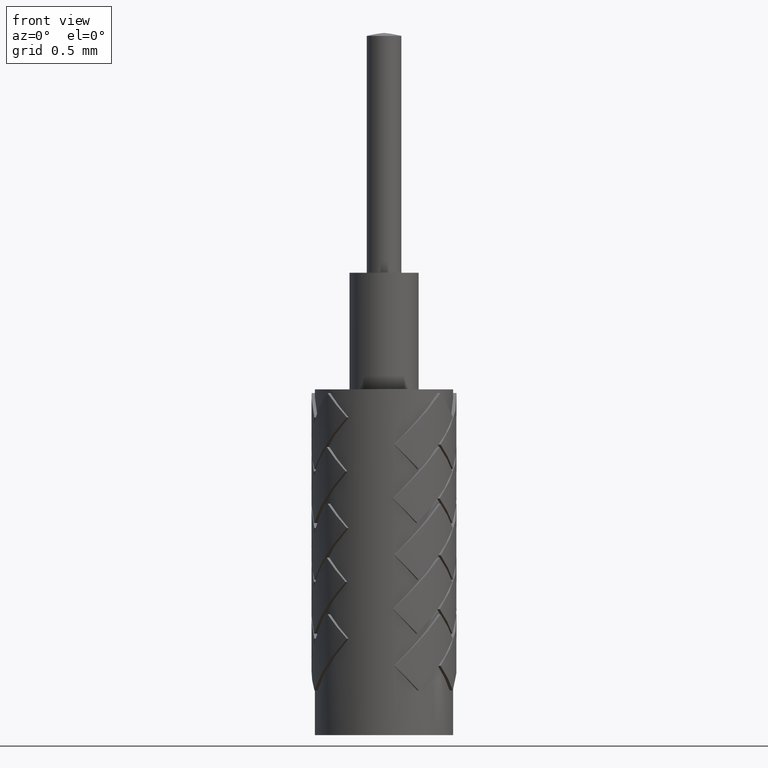
[diagram: clean part render]
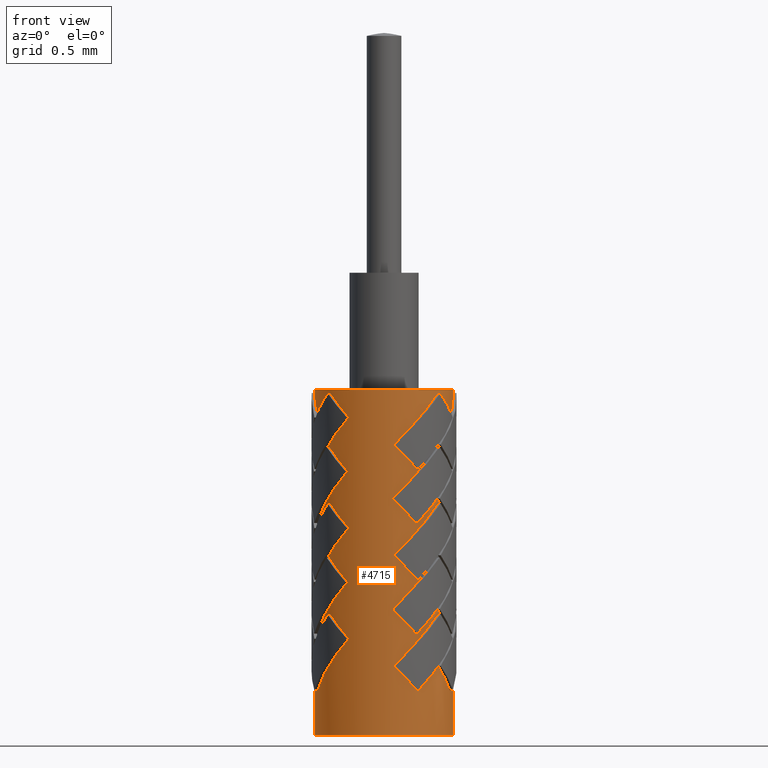
[diagram: same view with one face highlighted and labeled with its STEP entity id]
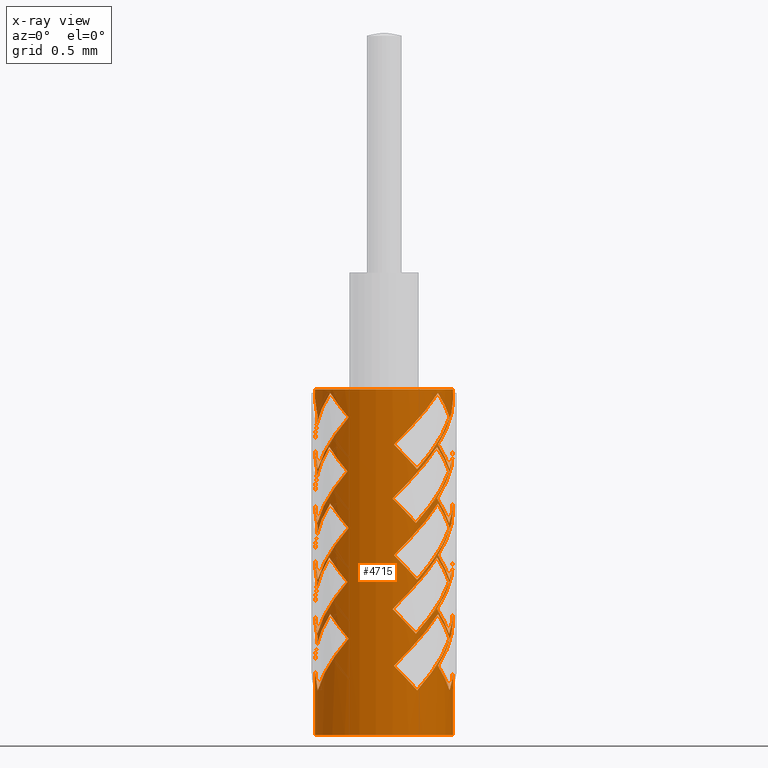
[diagram: x-ray of the same camera — body ghosted, the highlighted face saturated]
A machine part, front view. The second image highlights one B-rep face of the part: STEP entity #4715.
The next image is the same camera in x-ray: the body ghosted, the highlighted face saturated — about 0% of this face is hidden behind the body in this view.
In plain terms, the highlighted cylindrical surface (partial cylindrical patch) has radius 0.508 mm, axis along (0, 0, -1).
Its self-contained STEP definition (entity closure, byte-faithful):
#1 = ORIENTED_EDGE ( 'NONE', *, *, #4118, .F. ) ;
#10 = ORIENTED_EDGE ( 'NONE', *, *, #4101, .F. ) ;
#15 = ORIENTED_EDGE ( 'NONE', *, *, #4106, .F. ) ;
#19 = ORIENTED_EDGE ( 'NONE', *, *, #4428, .T. ) ;
#22 = ORIENTED_EDGE ( 'NONE', *, *, #4098, .F. ) ;
#26 = ORIENTED_EDGE ( 'NONE', *, *, #625, .F. ) ;
#31 = ORIENTED_EDGE ( 'NONE', *, *, #4110, .F. ) ;
#34 = ORIENTED_EDGE ( 'NONE', *, *, #4158, .F. ) ;
#38 = ORIENTED_EDGE ( 'NONE', *, *, #629, .F. ) ;
#52 = ORIENTED_EDGE ( 'NONE', *, *, #4102, .F. ) ;
#55 = ORIENTED_EDGE ( 'NONE', *, *, #4096, .F. ) ;
#58 = ORIENTED_EDGE ( 'NONE', *, *, #1821, .F. ) ;
#62 = ORIENTED_EDGE ( 'NONE', *, *, #4156, .F. ) ;
#76 = ORIENTED_EDGE ( 'NONE', *, *, #4115, .F. ) ;
#78 = ORIENTED_EDGE ( 'NONE', *, *, #4109, .F. ) ;
#79 = ORIENTED_EDGE ( 'NONE', *, *, #4120, .F. ) ;
#82 = ORIENTED_EDGE ( 'NONE', *, *, #4107, .F. ) ;
#84 = ORIENTED_EDGE ( 'NONE', *, *, #4084, .F. ) ;
#88 = ORIENTED_EDGE ( 'NONE', *, *, #4127, .F. ) ;
#89 = ORIENTED_EDGE ( 'NONE', *, *, #4141, .T. ) ;
#91 = ORIENTED_EDGE ( 'NONE', *, *, #6277, .T. ) ;
#102 = ORIENTED_EDGE ( 'NONE', *, *, #4147, .F. ) ;
#112 = ORIENTED_EDGE ( 'NONE', *, *, #4124, .F. ) ;
#119 = ORIENTED_EDGE ( 'NONE', *, *, #6246, .F. ) ;
#129 = ORIENTED_EDGE ( 'NONE', *, *, #4113, .F. ) ;
#132 = ORIENTED_EDGE ( 'NONE', *, *, #4117, .F. ) ;
#142 = ORIENTED_EDGE ( 'NONE', *, *, #1823, .T. ) ;
#159 = ORIENTED_EDGE ( 'NONE', *, *, #4091, .F. ) ;
#160 = ORIENTED_EDGE ( 'NONE', *, *, #4149, .F. ) ;
#163 = ORIENTED_EDGE ( 'NONE', *, *, #4112, .F. ) ;
#165 = ORIENTED_EDGE ( 'NONE', *, *, #4104, .F. ) ;
#170 = ORIENTED_EDGE ( 'NONE', *, *, #4090, .F. ) ;
#185 = ORIENTED_EDGE ( 'NONE', *, *, #1838, .F. ) ;
#187 = ORIENTED_EDGE ( 'NONE', *, *, #4155, .F. ) ;
#194 = ORIENTED_EDGE ( 'NONE', *, *, #4119, .F. ) ;
#207 = ORIENTED_EDGE ( 'NONE', *, *, #4430, .F. ) ;
#209 = ORIENTED_EDGE ( 'NONE', *, *, #4097, .T. ) ;
#212 = ORIENTED_EDGE ( 'NONE', *, *, #4122, .F. ) ;
#214 = ORIENTED_EDGE ( 'NONE', *, *, #4085, .F. ) ;
#219 = ORIENTED_EDGE ( 'NONE', *, *, #4138, .F. ) ;
#222 = ORIENTED_EDGE ( 'NONE', *, *, #4136, .F. ) ;
#223 = ORIENTED_EDGE ( 'NONE', *, *, #4100, .F. ) ;
#225 = ORIENTED_EDGE ( 'NONE', *, *, #4153, .F. ) ;
#229 = ORIENTED_EDGE ( 'NONE', *, *, #4133, .F. ) ;
#234 = ORIENTED_EDGE ( 'NONE', *, *, #1818, .F. ) ;
#236 = ORIENTED_EDGE ( 'NONE', *, *, #4442, .T. ) ;
#237 = ORIENTED_EDGE ( 'NONE', *, *, #4160, .F. ) ;
#238 = ORIENTED_EDGE ( 'NONE', *, *, #4116, .T. ) ;
#366 = EDGE_LOOP ( 'NONE', ( #165, #31, #219, #88 ) ) ;
#376 = LINE ( 'NONE', #6512, #388 ) ;
#381 = LINE ( 'NONE', #6493, #384 ) ;
#384 = VECTOR ( 'NONE', #6505, 39.37007874015748100 ) ;
#387 = LINE ( 'NONE', #6585, #389 ) ;
#388 = VECTOR ( 'NONE', #6627, 39.37007874015748100 ) ;
#389 = VECTOR ( 'NONE', #6564, 39.37007874015748100 ) ;
#393 = LINE ( 'NONE', #2387, #399 ) ;
#396 = LINE ( 'NONE', #6577, #397 ) ;
#397 = VECTOR ( 'NONE', #6537, 39.37007874015748100 ) ;
#398 = LINE ( 'NONE', #5146, #408 ) ;
#399 = VECTOR ( 'NONE', #2393, 39.37007874015748100 ) ;
#402 = LINE ( 'NONE', #5675, #406 ) ;
#403 = VECTOR ( 'NONE', #5030, 39.37007874015748100 ) ;
#406 = VECTOR ( 'NONE', #5331, 39.37007874015748100 ) ;
#408 = VECTOR ( 'NONE', #5108, 39.37007874015748100 ) ;
#409 = LINE ( 'NONE', #5034, #403 ) ;
#411 = CIRCLE ( 'NONE', #1354, 0.02000000000000000000 ) ;
#418 = LINE ( 'NONE', #5044, #423 ) ;
#420 = LINE ( 'NONE', #4952, #434 ) ;
#422 = LINE ( 'NONE', #5049, #426 ) ;
#423 = VECTOR ( 'NONE', #5050, 39.37007874015748100 ) ;
#426 = VECTOR ( 'NONE', #5057, 39.37007874015748100 ) ;
#430 = CIRCLE ( 'NONE', #1358, 0.02000000000000000000 ) ;
#434 = VECTOR ( 'NONE', #4954, 39.37007874015748100 ) ;
#456 = LINE ( 'NONE', #3926, #460 ) ;
#460 = VECTOR ( 'NONE', #3921, 39.37007874015748100 ) ;
#462 = LINE ( 'NONE', #3924, #466 ) ;
#466 = VECTOR ( 'NONE', #3925, 39.37007874015748100 ) ;
#471 = LINE ( 'NONE', #3977, #473 ) ;
#473 = VECTOR ( 'NONE', #3978, 39.37007874015748100 ) ;
#475 = LINE ( 'NONE', #4004, #482 ) ;
#482 = VECTOR ( 'NONE', #4005, 39.37007874015748100 ) ;
#488 = EDGE_CURVE ( 'NONE', #3294, #3287, #381, .T. ) ;
#493 = EDGE_CURVE ( 'NONE', #3308, #3302, #376, .T. ) ;
#498 = EDGE_CURVE ( 'NONE', #6009, #3367, #387, .T. ) ;
#623 = EDGE_CURVE ( 'NONE', #3250, #6029, #396, .T. ) ;
#625 = EDGE_CURVE ( 'NONE', #3321, #3377, #949, .T. ) ;
#626 = EDGE_CURVE ( 'NONE', #3390, #3418, #393, .T. ) ;
#627 = EDGE_CURVE ( 'NONE', #3393, #3406, #919, .T. ) ;
#629 = EDGE_CURVE ( 'NONE', #3367, #3404, #898, .T. ) ;
#630 = EDGE_CURVE ( 'NONE', #3339, #3312, #886, .T. ) ;
#632 = EDGE_CURVE ( 'NONE', #1423, #1413, #876, .T. ) ;
#849 = B_SPLINE_CURVE_WITH_KNOTS ( 'NONE', 3,
 ( #5114, #5961, #5105, #5091 ),
 .UNSPECIFIED., .F., .F.,
 ( 4, 4 ),
 ( 0.0000000000000000000, 1.000000000000000000 ),
 .UNSPECIFIED. ) ;
#850 = B_SPLINE_CURVE_WITH_KNOTS ( 'NONE', 3,
 ( #5757, #5743, #5821, #5820 ),
 .UNSPECIFIED., .F., .F.,
 ( 4, 4 ),
 ( 0.0000000000000000000, 1.000000000000000000 ),
 .UNSPECIFIED. ) ;
#857 = B_SPLINE_CURVE_WITH_KNOTS ( 'NONE', 3,
 ( #5987, #5120, #5072, #5054 ),
 .UNSPECIFIED., .F., .F.,
 ( 4, 4 ),
 ( 0.0000000000000000000, 1.000000000000000000 ),
 .UNSPECIFIED. ) ;
#866 = B_SPLINE_CURVE_WITH_KNOTS ( 'NONE', 3,
 ( #5147, #5158, #5454, #5455 ),
 .UNSPECIFIED., .F., .F.,
 ( 4, 4 ),
 ( 0.0000000000000000000, 1.000000000000000000 ),
 .UNSPECIFIED. ) ;
#867 = B_SPLINE_CURVE_WITH_KNOTS ( 'NONE', 3,
 ( #5201, #4973, #4990, #4988 ),
 .UNSPECIFIED., .F., .F.,
 ( 4, 4 ),
 ( 0.0000000000000000000, 1.000000000000000000 ),
 .UNSPECIFIED. ) ;
#871 = B_SPLINE_CURVE_WITH_KNOTS ( 'NONE', 3,
 ( #4976, #4982, #5006, #5005 ),
 .UNSPECIFIED., .F., .F.,
 ( 4, 4 ),
 ( 0.0000000000000000000, 1.000000000000000000 ),
 .UNSPECIFIED. ) ;
#873 = B_SPLINE_CURVE_WITH_KNOTS ( 'NONE', 3,
 ( #5805, #5789, #5822, #5824 ),
 .UNSPECIFIED., .F., .F.,
 ( 4, 4 ),
 ( 0.1901727432609637800, 1.000000000000000000 ),
 .UNSPECIFIED. ) ;
#875 = B_SPLINE_CURVE_WITH_KNOTS ( 'NONE', 3,
 ( #4981, #4979, #4978, #4972 ),
 .UNSPECIFIED., .F., .F.,
 ( 4, 4 ),
 ( 0.6488297465456278600, 1.000000000000000000 ),
 .UNSPECIFIED. ) ;
#876 = B_SPLINE_CURVE_WITH_KNOTS ( 'NONE', 3,
 ( #2407, #2425, #2403, #2404 ),
 .UNSPECIFIED., .F., .F.,
 ( 4, 4 ),
 ( 0.0000000000000000000, 1.000000000000000000 ),
 .UNSPECIFIED. ) ;
#884 = B_SPLINE_CURVE_WITH_KNOTS ( 'NONE', 3,
 ( #4965, #4961, #4962, #5103 ),
 .UNSPECIFIED., .F., .F.,
 ( 4, 4 ),
 ( 0.0000000000000000000, 0.7418374401682263900 ),
 .UNSPECIFIED. ) ;
#886 = B_SPLINE_CURVE_WITH_KNOTS ( 'NONE', 3,
 ( #2426, #2401, #2415, #2381 ),
 .UNSPECIFIED., .F., .F.,
 ( 4, 4 ),
 ( 0.1901727432610580400, 1.000000000000000000 ),
 .UNSPECIFIED. ) ;
#893 = B_SPLINE_CURVE_WITH_KNOTS ( 'NONE', 3,
 ( #4987, #4986, #4971, #4957 ),
 .UNSPECIFIED., .F., .F.,
 ( 4, 4 ),
 ( 0.0000000000000000000, 0.9101257023865098100 ),
 .UNSPECIFIED. ) ;
#897 = B_SPLINE_CURVE_WITH_KNOTS ( 'NONE', 3,
 ( #5078, #5079, #5083, #5082 ),
 .UNSPECIFIED., .F., .F.,
 ( 4, 4 ),
 ( 0.0000000000000000000, 0.4588925763950931200 ),
 .UNSPECIFIED. ) ;
#898 = B_SPLINE_CURVE_WITH_KNOTS ( 'NONE', 3,
 ( #2418, #2397, #2422, #2424 ),
 .UNSPECIFIED., .F., .F.,
 ( 4, 4 ),
 ( 0.09462787111893779200, 1.000000000000000000 ),
 .UNSPECIFIED. ) ;
#900 = B_SPLINE_CURVE_WITH_KNOTS ( 'NONE', 3,
 ( #5738, #5741, #5756, #5755 ),
 .UNSPECIFIED., .F., .F.,
 ( 4, 4 ),
 ( 0.6213562017139018200, 1.000000000000000000 ),
 .UNSPECIFIED. ) ;
#901 = B_SPLINE_CURVE_WITH_KNOTS ( 'NONE', 3,
 ( #5772, #5152, #5361, #5148 ),
 .UNSPECIFIED., .F., .F.,
 ( 4, 4 ),
 ( 0.0000000000000000000, 1.000000000000000000 ),
 .UNSPECIFIED. ) ;
#905 = B_SPLINE_CURVE_WITH_KNOTS ( 'NONE', 3,
 ( #4977, #5144, #5098, #5094 ),
 .UNSPECIFIED., .F., .F.,
 ( 4, 4 ),
 ( 0.6213562017138788400, 1.000000000000000000 ),
 .UNSPECIFIED. ) ;
#907 = B_SPLINE_CURVE_WITH_KNOTS ( 'NONE', 3,
 ( #5085, #5073, #4970, #5140 ),
 .UNSPECIFIED., .F., .F.,
 ( 4, 4 ),
 ( 0.06723021034980995700, 1.000000000000000000 ),
 .UNSPECIFIED. ) ;
#911 = B_SPLINE_CURVE_WITH_KNOTS ( 'NONE', 3,
 ( #5721, #5722, #5726, #5728 ),
 .UNSPECIFIED., .F., .F.,
 ( 4, 4 ),
 ( 0.0000000000000000000, 1.000000000000000000 ),
 .UNSPECIFIED. ) ;
#916 = B_SPLINE_CURVE_WITH_KNOTS ( 'NONE', 3,
 ( #5138, #4968, #5419, #5348 ),
 .UNSPECIFIED., .F., .F.,
 ( 4, 4 ),
 ( 0.0000000000000000000, 0.4588925763951146000 ),
 .UNSPECIFIED. ) ;
#919 = B_SPLINE_CURVE_WITH_KNOTS ( 'NONE', 3,
 ( #2396, #2394, #2380, #2400 ),
 .UNSPECIFIED., .F., .F.,
 ( 4, 4 ),
 ( 0.0000000000000000000, 1.000000000000000000 ),
 .UNSPECIFIED. ) ;
#920 = B_SPLINE_CURVE_WITH_KNOTS ( 'NONE', 3,
 ( #5876, #5717, #5637, #5627 ),
 .UNSPECIFIED., .F., .F.,
 ( 4, 4 ),
 ( 0.0000000000000000000, 1.000000000000000000 ),
 .UNSPECIFIED. ) ;
#921 = B_SPLINE_CURVE_WITH_KNOTS ( 'NONE', 3,
 ( #5727, #5724, #5737, #5735 ),
 .UNSPECIFIED., .F., .F.,
 ( 4, 4 ),
 ( 0.0000000000000000000, 1.000000000000000000 ),
 .UNSPECIFIED. ) ;
#929 = B_SPLINE_CURVE_WITH_KNOTS ( 'NONE', 3,
 ( #5046, #5087, #2836, #2827 ),
 .UNSPECIFIED., .F., .F.,
 ( 4, 4 ),
 ( 0.6488297465456509500, 1.000000000000000000 ),
 .UNSPECIFIED. ) ;
#936 = B_SPLINE_CURVE_WITH_KNOTS ( 'NONE', 3,
 ( #5014, #5022, #5031, #5032 ),
 .UNSPECIFIED., .F., .F.,
 ( 4, 4 ),
 ( 0.2481117338809957500, 1.000000000000000000 ),
 .UNSPECIFIED. ) ;
#937 = B_SPLINE_CURVE_WITH_KNOTS ( 'NONE', 3,
 ( #5693, #5694, #5720, #5725 ),
 .UNSPECIFIED., .F., .F.,
 ( 4, 4 ),
 ( 0.0000000000000000000, 0.4314131585300302100 ),
 .UNSPECIFIED. ) ;
#942 = B_SPLINE_CURVE_WITH_KNOTS ( 'NONE', 3,
 ( #5175, #5769, #5118, #5760 ),
 .UNSPECIFIED., .F., .F.,
 ( 4, 4 ),
 ( 0.09462787111891395000, 1.000000000000000000 ),
 .UNSPECIFIED. ) ;
#949 = B_SPLINE_CURVE_WITH_KNOTS ( 'NONE', 3,
 ( #2388, #2389, #2390, #2391 ),
 .UNSPECIFIED., .F., .F.,
 ( 4, 4 ),
 ( 0.0000000000000000000, 1.000000000000000000 ),
 .UNSPECIFIED. ) ;
#950 = B_SPLINE_CURVE_WITH_KNOTS ( 'NONE', 3,
 ( #4996, #5033, #4985, #4984 ),
 .UNSPECIFIED., .F., .F.,
 ( 4, 4 ),
 ( 0.0000000000000000000, 0.8827176986271161300 ),
 .UNSPECIFIED. ) ;
#953 = B_SPLINE_CURVE_WITH_KNOTS ( 'NONE', 3,
 ( #5901, #5928, #5649, #5650 ),
 .UNSPECIFIED., .F., .F.,
 ( 4, 4 ),
 ( 0.09462787111889417500, 1.000000000000000000 ),
 .UNSPECIFIED. ) ;
#961 = B_SPLINE_CURVE_WITH_KNOTS ( 'NONE', 3,
 ( #5602, #5580, #5609, #5667 ),
 .UNSPECIFIED., .F., .F.,
 ( 4, 4 ),
 ( 0.0000000000000000000, 1.000000000000000000 ),
 .UNSPECIFIED. ) ;
#962 = B_SPLINE_CURVE_WITH_KNOTS ( 'NONE', 3,
 ( #5029, #5026, #5040, #5038 ),
 .UNSPECIFIED., .F., .F.,
 ( 4, 4 ),
 ( 0.0000000000000000000, 1.000000000000000000 ),
 .UNSPECIFIED. ) ;
#975 = B_SPLINE_CURVE_WITH_KNOTS ( 'NONE', 3,
 ( #5812, #5836, #5846, #5852 ),
 .UNSPECIFIED., .F., .F.,
 ( 4, 4 ),
 ( 0.0000000000000000000, 1.000000000000000000 ),
 .UNSPECIFIED. ) ;
#996 = B_SPLINE_CURVE_WITH_KNOTS ( 'NONE', 3,
 ( #5436, #5451, #5608, #5604 ),
 .UNSPECIFIED., .F., .F.,
 ( 4, 4 ),
 ( 0.0000000000000000000, 0.8827176986429682300 ),
 .UNSPECIFIED. ) ;
#1001 = B_SPLINE_CURVE_WITH_KNOTS ( 'NONE', 3,
 ( #5818, #5994, #5097, #5095 ),
 .UNSPECIFIED., .F., .F.,
 ( 4, 4 ),
 ( 0.0000000000000000000, 0.7997767934392280300 ),
 .UNSPECIFIED. ) ;
#1004 = B_SPLINE_CURVE_WITH_KNOTS ( 'NONE', 3,
 ( #5100, #5355, #5266, #5278 ),
 .UNSPECIFIED., .F., .F.,
 ( 4, 4 ),
 ( 0.0000000000000000000, 0.4314131585300092200 ),
 .UNSPECIFIED. ) ;
#1008 = B_SPLINE_CURVE_WITH_KNOTS ( 'NONE', 3,
 ( #5164, #5463, #5448, #5445 ),
 .UNSPECIFIED., .F., .F.,
 ( 4, 4 ),
 ( 0.0000000000000000000, 1.000000000000000000 ),
 .UNSPECIFIED. ) ;
#1018 = B_SPLINE_CURVE_WITH_KNOTS ( 'NONE', 3,
 ( #5359, #5365, #5550, #5532 ),
 .UNSPECIFIED., .F., .F.,
 ( 4, 4 ),
 ( 0.0000000000000000000, 1.000000000000000000 ),
 .UNSPECIFIED. ) ;
#1021 = B_SPLINE_CURVE_WITH_KNOTS ( 'NONE', 3,
 ( #5280, #5243, #5926, #5920 ),
 .UNSPECIFIED., .F., .F.,
 ( 4, 4 ),
 ( 0.0000000000000000000, 1.000000000000000000 ),
 .UNSPECIFIED. ) ;
#1023 = B_SPLINE_CURVE_WITH_KNOTS ( 'NONE', 3,
 ( #4998, #5450, #5058, #5163 ),
 .UNSPECIFIED., .F., .F.,
 ( 4, 4 ),
 ( 0.0000000000000000000, 0.7418374401681757700 ),
 .UNSPECIFIED. ) ;
#1024 = B_SPLINE_CURVE_WITH_KNOTS ( 'NONE', 3,
 ( #4953, #5089, #5012, #5007 ),
 .UNSPECIFIED., .F., .F.,
 ( 4, 4 ),
 ( 0.0000000000000000000, 1.000000000000000000 ),
 .UNSPECIFIED. ) ;
#1025 = B_SPLINE_CURVE_WITH_KNOTS ( 'NONE', 3,
 ( #5234, #5636, #5973, #5950 ),
 .UNSPECIFIED., .F., .F.,
 ( 4, 4 ),
 ( 0.0000000000000000000, 1.000000000000000000 ),
 .UNSPECIFIED. ) ;
#1032 = B_SPLINE_CURVE_WITH_KNOTS ( 'NONE', 3,
 ( #5867, #5868, #5703, #5817 ),
 .UNSPECIFIED., .F., .F.,
 ( 4, 4 ),
 ( 0.0000000000000000000, 0.7997767934391826200 ),
 .UNSPECIFIED. ) ;
#1045 = B_SPLINE_CURVE_WITH_KNOTS ( 'NONE', 3,
 ( #5847, #5849, #5855, #5854 ),
 .UNSPECIFIED., .F., .F.,
 ( 4, 4 ),
 ( 0.0000000000000000000, 1.000000000000000000 ),
 .UNSPECIFIED. ) ;
#1048 = B_SPLINE_CURVE_WITH_KNOTS ( 'NONE', 3,
 ( #5856, #5850, #5864, #5861 ),
 .UNSPECIFIED., .F., .F.,
 ( 4, 4 ),
 ( 0.0000000000000000000, 0.7997767934392761000 ),
 .UNSPECIFIED. ) ;
#1056 = B_SPLINE_CURVE_WITH_KNOTS ( 'NONE', 3,
 ( #5831, #5829, #5845, #5844 ),
 .UNSPECIFIED., .F., .F.,
 ( 4, 4 ),
 ( 0.0000000000000000000, 1.000000000000000000 ),
 .UNSPECIFIED. ) ;
#1067 = B_SPLINE_CURVE_WITH_KNOTS ( 'NONE', 3,
 ( #5857, #5860, #5865, #5878 ),
 .UNSPECIFIED., .F., .F.,
 ( 4, 4 ),
 ( 0.0000000000000000000, 1.000000000000000000 ),
 .UNSPECIFIED. ) ;
#1068 = B_SPLINE_CURVE_WITH_KNOTS ( 'NONE', 3,
 ( #4959, #4958, #5400, #5403 ),
 .UNSPECIFIED., .F., .F.,
 ( 4, 4 ),
 ( 0.0000000000000000000, 1.000000000000000000 ),
 .UNSPECIFIED. ) ;
#1072 = B_SPLINE_CURVE_WITH_KNOTS ( 'NONE', 3,
 ( #5086, #5080, #5132, #5133 ),
 .UNSPECIFIED., .F., .F.,
 ( 4, 4 ),
 ( 0.0000000000000000000, 1.000000000000000000 ),
 .UNSPECIFIED. ) ;
#1079 = B_SPLINE_CURVE_WITH_KNOTS ( 'NONE', 3,
 ( #5134, #5964, #5119, #5125 ),
 .UNSPECIFIED., .F., .F.,
 ( 4, 4 ),
 ( 0.0000000000000000000, 1.000000000000000000 ),
 .UNSPECIFIED. ) ;
#1085 = B_SPLINE_CURVE_WITH_KNOTS ( 'NONE', 3,
 ( #5937, #5963, #5102, #5109 ),
 .UNSPECIFIED., .F., .F.,
 ( 4, 4 ),
 ( 0.0000000000000000000, 1.000000000000000000 ),
 .UNSPECIFIED. ) ;
#1087 = B_SPLINE_CURVE_WITH_KNOTS ( 'NONE', 3,
 ( #5337, #5301, #5241, #5628 ),
 .UNSPECIFIED., .F., .F.,
 ( 4, 4 ),
 ( 0.0000000000000000000, 1.000000000000000000 ),
 .UNSPECIFIED. ) ;
#1088 = B_SPLINE_CURVE_WITH_KNOTS ( 'NONE', 3,
 ( #5023, #5212, #5255, #5047 ),
 .UNSPECIFIED., .F., .F.,
 ( 4, 4 ),
 ( 0.0000000000000000000, 1.000000000000000000 ),
 .UNSPECIFIED. ) ;
#1092 = B_SPLINE_CURVE_WITH_KNOTS ( 'NONE', 3,
 ( #4966, #5141, #5126, #5143 ),
 .UNSPECIFIED., .F., .F.,
 ( 4, 4 ),
 ( 0.0000000000000000000, 1.000000000000000000 ),
 .UNSPECIFIED. ) ;
#1100 = B_SPLINE_CURVE_WITH_KNOTS ( 'NONE', 3,
 ( #5653, #5379, #5886, #5892 ),
 .UNSPECIFIED., .F., .F.,
 ( 4, 4 ),
 ( 0.0000000000000000000, 1.000000000000000000 ),
 .UNSPECIFIED. ) ;
#1113 = B_SPLINE_CURVE_WITH_KNOTS ( 'NONE', 3,
 ( #5226, #5352, #4980, #5088 ),
 .UNSPECIFIED., .F., .F.,
 ( 4, 4 ),
 ( 0.1901727432610116100, 1.000000000000000000 ),
 .UNSPECIFIED. ) ;
#1115 = B_SPLINE_CURVE_WITH_KNOTS ( 'NONE', 3,
 ( #5841, #5863, #5018, #5460 ),
 .UNSPECIFIED., .F., .F.,
 ( 4, 4 ),
 ( 0.6213562017138555300, 1.000000000000000000 ),
 .UNSPECIFIED. ) ;
#1118 = B_SPLINE_CURVE_WITH_KNOTS ( 'NONE', 3,
 ( #5603, #5610, #5679, #5677 ),
 .UNSPECIFIED., .F., .F.,
 ( 4, 4 ),
 ( 0.0000000000000000000, 1.000000000000000000 ),
 .UNSPECIFIED. ) ;
#1120 = B_SPLINE_CURVE_WITH_KNOTS ( 'NONE', 3,
 ( #5084, #5039, #5581, #5381 ),
 .UNSPECIFIED., .F., .F.,
 ( 4, 4 ),
 ( 0.0000000000000000000, 0.9101257023865316800 ),
 .UNSPECIFIED. ) ;
#1121 = B_SPLINE_CURVE_WITH_KNOTS ( 'NONE', 3,
 ( #5440, #5377, #5643, #5322 ),
 .UNSPECIFIED., .F., .F.,
 ( 4, 4 ),
 ( 0.2481117338810456000, 1.000000000000000000 ),
 .UNSPECIFIED. ) ;
#1123 = B_SPLINE_CURVE_WITH_KNOTS ( 'NONE', 3,
 ( #5988, #5090, #4960, #5153 ),
 .UNSPECIFIED., .F., .F.,
 ( 4, 4 ),
 ( 0.0000000000000000000, 1.000000000000000000 ),
 .UNSPECIFIED. ) ;
#1124 = B_SPLINE_CURVE_WITH_KNOTS ( 'NONE', 3,
 ( #5655, #5652, #5859, #5862 ),
 .UNSPECIFIED., .F., .F.,
 ( 4, 4 ),
 ( 0.0000000000000000000, 1.000000000000000000 ),
 .UNSPECIFIED. ) ;
#1125 = B_SPLINE_CURVE_WITH_KNOTS ( 'NONE', 3,
 ( #5723, #5644, #5674, #5692 ),
 .UNSPECIFIED., .F., .F.,
 ( 4, 4 ),
 ( 0.06723021034978644800, 1.000000000000000000 ),
 .UNSPECIFIED. ) ;
#1133 = B_SPLINE_CURVE_WITH_KNOTS ( 'NONE', 3,
 ( #4963, #5156, #5986, #5991 ),
 .UNSPECIFIED., .F., .F.,
 ( 4, 4 ),
 ( 0.0000000000000000000, 0.9101257023865543200 ),
 .UNSPECIFIED. ) ;
#1140 = B_SPLINE_CURVE_WITH_KNOTS ( 'NONE', 3,
 ( #5869, #5646, #5753, #5719 ),
 .UNSPECIFIED., .F., .F.,
 ( 4, 4 ),
 ( 0.0000000000000000000, 0.4314131585300539100 ),
 .UNSPECIFIED. ) ;
#1354 = AXIS2_PLACEMENT_3D ( 'NONE', #5825, #5840, #5837 ) ;
#1358 = AXIS2_PLACEMENT_3D ( 'NONE', #4995, #4994, #4991 ) ;
#1396 = ORIENTED_EDGE ( 'NONE', *, *, #623, .T. ) ;
#1399 = ORIENTED_EDGE ( 'NONE', *, *, #630, .F. ) ;
#1404 = ORIENTED_EDGE ( 'NONE', *, *, #4094, .F. ) ;
#1410 = ORIENTED_EDGE ( 'NONE', *, *, #4086, .F. ) ;
#1413 = VERTEX_POINT ( 'NONE', #5225 ) ;
#1423 = VERTEX_POINT ( 'NONE', #5262 ) ;
#1458 = VERTEX_POINT ( 'NONE', #5194 ) ;
#1462 = VERTEX_POINT ( 'NONE', #5417 ) ;
#1469 = ORIENTED_EDGE ( 'NONE', *, *, #4103, .F. ) ;
#1470 = ORIENTED_EDGE ( 'NONE', *, *, #4161, .T. ) ;
#1485 = ORIENTED_EDGE ( 'NONE', *, *, #4159, .F. ) ;
#1501 = ORIENTED_EDGE ( 'NONE', *, *, #4157, .F. ) ;
#1693 = VERTEX_POINT ( 'NONE', #5905 ) ;
#1729 = VERTEX_POINT ( 'NONE', #5893 ) ;
#1781 = VERTEX_POINT ( 'NONE', #5898 ) ;
#1796 = EDGE_LOOP ( 'NONE', ( #15, #84, #2500, #2523 ) ) ;
#1800 = EDGE_LOOP ( 'NONE', ( #112, #82, #163, #76 ) ) ;
#1818 = EDGE_CURVE ( 'NONE', #3287, #3345, #953, .T. ) ;
#1819 = EDGE_CURVE ( 'NONE', #3345, #3356, #1124, .T. ) ;
#1820 = EDGE_CURVE ( 'NONE', #3356, #6012, #1140, .T. ) ;
#1821 = EDGE_CURVE ( 'NONE', #3279, #3321, #1125, .T. ) ;
#1822 = EDGE_CURVE ( 'NONE', #3318, #3351, #1121, .T. ) ;
#1823 = EDGE_CURVE ( 'NONE', #3315, #3364, #402, .T. ) ;
#1838 = EDGE_CURVE ( 'NONE', #3274, #3298, #942, .T. ) ;
#2021 = DIRECTION ( 'NONE',  ( 0.0000000000000000000, 0.0000000000000000000, -1.000000000000000000 ) ) ;
#2039 = DIRECTION ( 'NONE',  ( -1.000000000000000000, 0.0000000000000000000, 0.0000000000000000000 ) ) ;
#2040 = CARTESIAN_POINT ( 'NONE',  ( 0.0000000000000000000, 0.0000000000000000000, 0.09999999999999999200 ) ) ;
#2276 = EDGE_LOOP ( 'NONE', ( #22, #229, #52, #2465 ) ) ;
#2380 = CARTESIAN_POINT ( 'NONE',  ( 0.01735156363816484800, -0.01112881125486553000, 0.02288402389101109800 ) ) ;
#2381 = CARTESIAN_POINT ( 'NONE',  ( -0.01918584769474317200, -0.005648296046961253200, 0.07694780645896962000 ) ) ;
#2387 = CARTESIAN_POINT ( 'NONE',  ( -0.02000000000000000000, 0.0000000000000000000, 0.09999999999999999200 ) ) ;
#2388 = CARTESIAN_POINT ( 'NONE',  ( 0.01534653284864837900, -0.01282512883075083600, 0.06841536316936860900 ) ) ;
#2389 = CARTESIAN_POINT ( 'NONE',  ( 0.01685831824765061200, -0.01101612834490257400, 0.06605782677507146500 ) ) ;
#2390 = CARTESIAN_POINT ( 'NONE',  ( 0.01804587247071587000, -0.008938929724586425600, 0.06370183175180027500 ) ) ;
#2391 = CARTESIAN_POINT ( 'NONE',  ( 0.01883781468636120900, -0.006718388038980332500, 0.06134429535750314500 ) ) ;
#2393 = DIRECTION ( 'NONE',  ( 0.0000000000000000000, 0.0000000000000000000, -1.000000000000000000 ) ) ;
#2394 = CARTESIAN_POINT ( 'NONE',  ( 0.01395030438031144400, -0.01517617238740946900, 0.01794052121506200000 ) ) ;
#2396 = CARTESIAN_POINT ( 'NONE',  ( 0.009565675601964498300, -0.01756410687390569400, 0.01294780645896931100 ) ) ;
#2397 = CARTESIAN_POINT ( 'NONE',  ( 0.01999120914945714700, -0.004510296261496965200, 0.02901906476836176000 ) ) ;
#2400 = CARTESIAN_POINT ( 'NONE',  ( 0.01894885770225769600, -0.006398499181807341100, 0.02787673864710379600 ) ) ;
#2401 = CARTESIAN_POINT ( 'NONE',  ( -0.01999910684352097800, -0.001908739767540248200, 0.08076519005847360200 ) ) ;
#2403 = CARTESIAN_POINT ( 'NONE',  ( 0.01711997347440487700, -0.01148188611994472300, 0.03928051278954484300 ) ) ;
#2404 = CARTESIAN_POINT ( 'NONE',  ( 0.01881382275123450300, -0.006785283596514661000, 0.04427322754563757500 ) ) ;
#2407 = CARTESIAN_POINT ( 'NONE',  ( 0.009203905627672454000, -0.01775635438925736800, 0.02934429535750304000 ) ) ;
#2415 = CARTESIAN_POINT ( 'NONE',  ( -0.01972503325334229500, -0.003816817682428080800, 0.07885700368983787600 ) ) ;
#2418 = CARTESIAN_POINT ( 'NONE',  ( 0.01999934743764978200, 9.407509224142099000E-008, 0.03353178810199172700 ) ) ;
#2422 = CARTESIAN_POINT ( 'NONE',  ( 0.01843300411269387800, -0.008980932753985202900, 0.02453913905845447500 ) ) ;
#2424 = CARTESIAN_POINT ( 'NONE',  ( 0.01560600852468146300, -0.01250809729445568100, 0.02001887427083492600 ) ) ;
#2425 = CARTESIAN_POINT ( 'NONE',  ( 0.01363652625635529900, -0.01545873061720911600, 0.03433701011359578700 ) ) ;
#2426 = CARTESIAN_POINT ( 'NONE',  ( -0.01999985935467798000, 6.435121417678949900E-009, 0.08267400920225280400 ) ) ;
#2452 = ORIENTED_EDGE ( 'NONE', *, *, #4148, .F. ) ;
#2455 = ORIENTED_EDGE ( 'NONE', *, *, #1819, .F. ) ;
#2458 = ORIENTED_EDGE ( 'NONE', *, *, #4152, .F. ) ;
#2465 = ORIENTED_EDGE ( 'NONE', *, *, #4163, .F. ) ;
#2469 = ORIENTED_EDGE ( 'NONE', *, *, #4108, .F. ) ;
#2470 = ORIENTED_EDGE ( 'NONE', *, *, #4121, .F. ) ;
#2478 = ORIENTED_EDGE ( 'NONE', *, *, #493, .F. ) ;
#2482 = ORIENTED_EDGE ( 'NONE', *, *, #1820, .F. ) ;
#2486 = ORIENTED_EDGE ( 'NONE', *, *, #4450, .F. ) ;
#2489 = ORIENTED_EDGE ( 'NONE', *, *, #4128, .F. ) ;
#2494 = ORIENTED_EDGE ( 'NONE', *, *, #1822, .F. ) ;
#2500 = ORIENTED_EDGE ( 'NONE', *, *, #4087, .F. ) ;
#2502 = ORIENTED_EDGE ( 'NONE', *, *, #4140, .T. ) ;
#2508 = ORIENTED_EDGE ( 'NONE', *, *, #4105, .F. ) ;
#2509 = ORIENTED_EDGE ( 'NONE', *, *, #626, .T. ) ;
#2515 = ORIENTED_EDGE ( 'NONE', *, *, #4099, .F. ) ;
#2523 = ORIENTED_EDGE ( 'NONE', *, *, #632, .F. ) ;
#2528 = ORIENTED_EDGE ( 'NONE', *, *, #4165, .F. ) ;
#2533 = ORIENTED_EDGE ( 'NONE', *, *, #4146, .F. ) ;
#2537 = ORIENTED_EDGE ( 'NONE', *, *, #627, .F. ) ;
#2549 = ORIENTED_EDGE ( 'NONE', *, *, #4092, .F. ) ;
#2550 = ORIENTED_EDGE ( 'NONE', *, *, #4137, .T. ) ;
#2553 = ORIENTED_EDGE ( 'NONE', *, *, #488, .F. ) ;
#2556 = ORIENTED_EDGE ( 'NONE', *, *, #4123, .F. ) ;
#2577 = ORIENTED_EDGE ( 'NONE', *, *, #4145, .F. ) ;
#2582 = ORIENTED_EDGE ( 'NONE', *, *, #498, .F. ) ;
#2583 = ORIENTED_EDGE ( 'NONE', *, *, #4095, .F. ) ;
#2584 = ORIENTED_EDGE ( 'NONE', *, *, #4162, .F. ) ;
#2605 = VECTOR ( 'NONE', #3026, 39.37007874015748100 ) ;
#2610 = LINE ( 'NONE', #3025, #2605 ) ;
#2623 = LINE ( 'NONE', #3109, #2624 ) ;
#2624 = VECTOR ( 'NONE', #3110, 39.37007874015748100 ) ;
#2668 = EDGE_LOOP ( 'NONE', ( #2537, #212, #2549, #194 ) ) ;
#2827 = CARTESIAN_POINT ( 'NONE',  ( -0.01931606394631819200, -0.005185525394957240400, 0.07627322754563789500 ) ) ;
#2836 = CARTESIAN_POINT ( 'NONE',  ( -0.01977065119084483700, -0.003492189500199815700, 0.07451993463931555500 ) ) ;
#3025 = CARTESIAN_POINT ( 'NONE',  ( 0.02000000000000000000, 2.449293598294706800E-018, 0.09999999999999999200 ) ) ;
#3026 = DIRECTION ( 'NONE',  ( 0.0000000000000000000, 0.0000000000000000000, -1.000000000000000000 ) ) ;
#3109 = CARTESIAN_POINT ( 'NONE',  ( -0.02000000000000000000, 0.0000000000000000000, 0.09999999999999999200 ) ) ;
#3110 = DIRECTION ( 'NONE',  ( 0.0000000000000000000, 0.0000000000000000000, -1.000000000000000000 ) ) ;
#3250 = VERTEX_POINT ( 'NONE', #5705 ) ;
#3255 = VERTEX_POINT ( 'NONE', #5588 ) ;
#3259 = VERTEX_POINT ( 'NONE', #5397 ) ;
#3260 = VERTEX_POINT ( 'NONE', #5811 ) ;
#3266 = VERTEX_POINT ( 'NONE', #5395 ) ;
#3271 = VERTEX_POINT ( 'NONE', #5123 ) ;
#3273 = VERTEX_POINT ( 'NONE', #5788 ) ;
#3274 = VERTEX_POINT ( 'NONE', #5795 ) ;
#3276 = VERTEX_POINT ( 'NONE', #5384 ) ;
#3279 = VERTEX_POINT ( 'NONE', #5777 ) ;
#3284 = VERTEX_POINT ( 'NONE', #5645 ) ;
#3287 = VERTEX_POINT ( 'NONE', #5546 ) ;
#3294 = VERTEX_POINT ( 'NONE', #5626 ) ;
#3298 = VERTEX_POINT ( 'NONE', #5557 ) ;
#3301 = VERTEX_POINT ( 'NONE', #5618 ) ;
#3302 = VERTEX_POINT ( 'NONE', #5554 ) ;
#3305 = VERTEX_POINT ( 'NONE', #5607 ) ;
#3307 = VERTEX_POINT ( 'NONE', #5441 ) ;
#3308 = VERTEX_POINT ( 'NONE', #5601 ) ;
#3312 = VERTEX_POINT ( 'NONE', #5452 ) ;
#3314 = VERTEX_POINT ( 'NONE', #5648 ) ;
#3315 = VERTEX_POINT ( 'NONE', #5457 ) ;
#3316 = VERTEX_POINT ( 'NONE', #5453 ) ;
#3317 = VERTEX_POINT ( 'NONE', #5459 ) ;
#3318 = VERTEX_POINT ( 'NONE', #5470 ) ;
#3319 = VERTEX_POINT ( 'NONE', #5265 ) ;
#3320 = VERTEX_POINT ( 'NONE', #5462 ) ;
#3321 = VERTEX_POINT ( 'NONE', #5479 ) ;
#3327 = VERTEX_POINT ( 'NONE', #5490 ) ;
#3330 = VERTEX_POINT ( 'NONE', #5497 ) ;
#3333 = VERTEX_POINT ( 'NONE', #5500 ) ;
#3338 = VERTEX_POINT ( 'NONE', #5521 ) ;
#3339 = VERTEX_POINT ( 'NONE', #5378 ) ;
#3345 = VERTEX_POINT ( 'NONE', #5001 ) ;
#3348 = VERTEX_POINT ( 'NONE', #5968 ) ;
#3351 = VERTEX_POINT ( 'NONE', #5931 ) ;
#3352 = VERTEX_POINT ( 'NONE', #5003 ) ;
#3354 = VERTEX_POINT ( 'NONE', #5258 ) ;
#3355 = VERTEX_POINT ( 'NONE', #4992 ) ;
#3356 = VERTEX_POINT ( 'NONE', #5101 ) ;
#3357 = VERTEX_POINT ( 'NONE', #5182 ) ;
#3362 = VERTEX_POINT ( 'NONE', #5651 ) ;
#3364 = VERTEX_POINT ( 'NONE', #5237 ) ;
#3365 = VERTEX_POINT ( 'NONE', #5154 ) ;
#3367 = VERTEX_POINT ( 'NONE', #5236 ) ;
#3373 = VERTEX_POINT ( 'NONE', #5075 ) ;
#3374 = VERTEX_POINT ( 'NONE', #5076 ) ;
#3376 = VERTEX_POINT ( 'NONE', #5209 ) ;
#3377 = VERTEX_POINT ( 'NONE', #5189 ) ;
#3379 = VERTEX_POINT ( 'NONE', #5639 ) ;
#3380 = VERTEX_POINT ( 'NONE', #5173 ) ;
#3381 = VERTEX_POINT ( 'NONE', #5765 ) ;
#3390 = VERTEX_POINT ( 'NONE', #5274 ) ;
#3391 = VERTEX_POINT ( 'NONE', #5781 ) ;
#3393 = VERTEX_POINT ( 'NONE', #5792 ) ;
#3396 = VERTEX_POINT ( 'NONE', #5793 ) ;
#3397 = VERTEX_POINT ( 'NONE', #5794 ) ;
#3402 = VERTEX_POINT ( 'NONE', #5583 ) ;
#3404 = VERTEX_POINT ( 'NONE', #5510 ) ;
#3406 = VERTEX_POINT ( 'NONE', #5511 ) ;
#3414 = VERTEX_POINT ( 'NONE', #5268 ) ;
#3415 = VERTEX_POINT ( 'NONE', #5253 ) ;
#3417 = VERTEX_POINT ( 'NONE', #5327 ) ;
#3418 = VERTEX_POINT ( 'NONE', #5192 ) ;
#3419 = VERTEX_POINT ( 'NONE', #5104 ) ;
#3423 = VERTEX_POINT ( 'NONE', #5068 ) ;
#3921 = DIRECTION ( 'NONE',  ( 0.0000000000000000000, 0.0000000000000000000, -1.000000000000000000 ) ) ;
#3924 = CARTESIAN_POINT ( 'NONE',  ( 0.02000000000000000000, 2.449293598294706800E-018, 0.09999999999999999200 ) ) ;
#3925 = DIRECTION ( 'NONE',  ( 0.0000000000000000000, 0.0000000000000000000, -1.000000000000000000 ) ) ;
#3926 = CARTESIAN_POINT ( 'NONE',  ( -0.02000000000000000000, 0.0000000000000000000, 0.09999999999999999200 ) ) ;
#3977 = CARTESIAN_POINT ( 'NONE',  ( -0.02000000000000000000, 0.0000000000000000000, 0.09999999999999999200 ) ) ;
#3978 = DIRECTION ( 'NONE',  ( 0.0000000000000000000, 0.0000000000000000000, -1.000000000000000000 ) ) ;
#4004 = CARTESIAN_POINT ( 'NONE',  ( 0.02000000000000000000, 2.449293598294706800E-018, 0.09999999999999999200 ) ) ;
#4005 = DIRECTION ( 'NONE',  ( 0.0000000000000000000, 0.0000000000000000000, -1.000000000000000000 ) ) ;
#4084 = EDGE_CURVE ( 'NONE', #1462, #1781, #1018, .T. ) ;
#4085 = EDGE_CURVE ( 'NONE', #3396, #3419, #996, .T. ) ;
#4086 = EDGE_CURVE ( 'NONE', #3373, #3330, #961, .T. ) ;
#4087 = EDGE_CURVE ( 'NONE', #1413, #1462, #1118, .T. ) ;
#4090 = EDGE_CURVE ( 'NONE', #3266, #3308, #937, .T. ) ;
#4091 = EDGE_CURVE ( 'NONE', #6030, #3327, #911, .T. ) ;
#4092 = EDGE_CURVE ( 'NONE', #1729, #3423, #921, .T. ) ;
#4094 = EDGE_CURVE ( 'NONE', #3250, #3317, #900, .T. ) ;
#4095 = EDGE_CURVE ( 'NONE', #3352, #3396, #850, .T. ) ;
#4096 = EDGE_CURVE ( 'NONE', #3307, #3374, #873, .T. ) ;
#4097 = EDGE_CURVE ( 'NONE', #3294, #3284, #411, .T. ) ;
#4098 = EDGE_CURVE ( 'NONE', #3314, #3397, #1056, .T. ) ;
#4099 = EDGE_CURVE ( 'NONE', #3351, #3338, #975, .T. ) ;
#4100 = EDGE_CURVE ( 'NONE', #3374, #6030, #1045, .T. ) ;
#4101 = EDGE_CURVE ( 'NONE', #3305, #6043, #1048, .T. ) ;
#4102 = EDGE_CURVE ( 'NONE', #6039, #3276, #1067, .T. ) ;
#4103 = EDGE_CURVE ( 'NONE', #3317, #3255, #1032, .T. ) ;
#4104 = EDGE_CURVE ( 'NONE', #6054, #1693, #920, .T. ) ;
#4105 = EDGE_CURVE ( 'NONE', #3259, #3417, #1001, .T. ) ;
#4106 = EDGE_CURVE ( 'NONE', #1781, #1423, #857, .T. ) ;
#4107 = EDGE_CURVE ( 'NONE', #3380, #3260, #1123, .T. ) ;
#4108 = EDGE_CURVE ( 'NONE', #3319, #3418, #1120, .T. ) ;
#4109 = EDGE_CURVE ( 'NONE', #3327, #3273, #1133, .T. ) ;
#4110 = EDGE_CURVE ( 'NONE', #3391, #6054, #1100, .T. ) ;
#4112 = EDGE_CURVE ( 'NONE', #6021, #3380, #1085, .T. ) ;
#4113 = EDGE_CURVE ( 'NONE', #3348, #3320, #1079, .T. ) ;
#4115 = EDGE_CURVE ( 'NONE', #3333, #6021, #1092, .T. ) ;
#4116 = EDGE_CURVE ( 'NONE', #3271, #3419, #398, .T. ) ;
#4117 = EDGE_CURVE ( 'NONE', #3402, #3352, #849, .T. ) ;
#4118 = EDGE_CURVE ( 'NONE', #3379, #3364, #884, .T. ) ;
#4119 = EDGE_CURVE ( 'NONE', #3406, #1729, #1068, .T. ) ;
#4120 = EDGE_CURVE ( 'NONE', #3357, #3355, #1004, .T. ) ;
#4121 = EDGE_CURVE ( 'NONE', #3404, #3357, #1087, .T. ) ;
#4122 = EDGE_CURVE ( 'NONE', #3423, #3393, #1021, .T. ) ;
#4123 = EDGE_CURVE ( 'NONE', #3381, #3319, #1025, .T. ) ;
#4124 = EDGE_CURVE ( 'NONE', #3260, #3333, #901, .T. ) ;
#4127 = EDGE_CURVE ( 'NONE', #1693, #1458, #866, .T. ) ;
#4128 = EDGE_CURVE ( 'NONE', #3298, #3266, #1008, .T. ) ;
#4133 = EDGE_CURVE ( 'NONE', #3276, #3314, #871, .T. ) ;
#4136 = EDGE_CURVE ( 'NONE', #3354, #3402, #936, .T. ) ;
#4137 = EDGE_CURVE ( 'NONE', #3318, #3417, #409, .T. ) ;
#4138 = EDGE_CURVE ( 'NONE', #1458, #3391, #962, .T. ) ;
#4140 = EDGE_CURVE ( 'NONE', #3339, #6049, #418, .T. ) ;
#4141 = EDGE_CURVE ( 'NONE', #6038, #3362, #422, .T. ) ;
#4145 = EDGE_CURVE ( 'NONE', #3320, #6009, #897, .T. ) ;
#4146 = EDGE_CURVE ( 'NONE', #3415, #3381, #1072, .T. ) ;
#4147 = EDGE_CURVE ( 'NONE', #3302, #3348, #907, .T. ) ;
#4148 = EDGE_CURVE ( 'NONE', #3377, #6005, #916, .T. ) ;
#4149 = EDGE_CURVE ( 'NONE', #3365, #6049, #1023, .T. ) ;
#4152 = EDGE_CURVE ( 'NONE', #3315, #3415, #1113, .T. ) ;
#4153 = EDGE_CURVE ( 'NONE', #3338, #3414, #1088, .T. ) ;
#4155 = EDGE_CURVE ( 'NONE', #3301, #3305, #1115, .T. ) ;
#4156 = EDGE_CURVE ( 'NONE', #3316, #3376, #430, .T. ) ;
#4157 = EDGE_CURVE ( 'NONE', #3312, #3373, #867, .T. ) ;
#4158 = EDGE_CURVE ( 'NONE', #3414, #3362, #950, .T. ) ;
#4159 = EDGE_CURVE ( 'NONE', #3330, #6029, #893, .T. ) ;
#4160 = EDGE_CURVE ( 'NONE', #3271, #3379, #875, .T. ) ;
#4161 = EDGE_CURVE ( 'NONE', #3284, #3255, #420, .T. ) ;
#4162 = EDGE_CURVE ( 'NONE', #3390, #3259, #905, .T. ) ;
#4163 = EDGE_CURVE ( 'NONE', #3397, #6039, #1024, .T. ) ;
#4165 = EDGE_CURVE ( 'NONE', #6038, #3365, #929, .T. ) ;
#4374 = AXIS2_PLACEMENT_3D ( 'NONE', #2040, #2021, #2039 ) ;
#4428 = EDGE_CURVE ( 'NONE', #3307, #3376, #456, .T. ) ;
#4430 = EDGE_CURVE ( 'NONE', #6005, #3274, #462, .T. ) ;
#4442 = EDGE_CURVE ( 'NONE', #3301, #3273, #471, .T. ) ;
#4450 = EDGE_CURVE ( 'NONE', #6012, #3279, #475, .T. ) ;
#4592 = EDGE_LOOP ( 'NONE', ( #2553, #209, #1470, #1469, #1404, #1396, #1485, #1410, #1501, #1399, #2502, #160, #2528, #89, #34, #225, #2515, #2494, #2550, #2508, #2584, #2509, #2469, #2556, #2533, #2458, #142, #1, #237, #238, #214, #2583, #132, #222, #91, #10, #187, #236, #78, #159, #223, #55, #19, #62, #119, #79, #2470, #38, #2582, #2577, #129, #102, #2478, #170, #2489, #185, #207, #2452, #26, #58, #2486, #2482, #2455, #234 ) ) ;
#4715 = ADVANCED_FACE ( 'NONE', ( #6085, #6087, #6075, #6088, #6086, #6089 ), #6094, .T. ) ;
#4952 = CARTESIAN_POINT ( 'NONE',  ( -0.02000000000000000000, 0.0000000000000000000, 0.09999999999999999200 ) ) ;
#4953 = CARTESIAN_POINT ( 'NONE',  ( 0.01894885770225759200, -0.006398499181807643800, 0.05987673864710380000 ) ) ;
#4954 = DIRECTION ( 'NONE',  ( 0.0000000000000000000, 0.0000000000000000000, -1.000000000000000000 ) ) ;
#4957 = CARTESIAN_POINT ( 'NONE',  ( -0.01999940568478367600, 8.669014727593785200E-008, 0.08536381770295706200 ) ) ;
#4958 = CARTESIAN_POINT ( 'NONE',  ( 0.01819462296775812800, -0.008632130264978858300, 0.03023427504140097400 ) ) ;
#4959 = CARTESIAN_POINT ( 'NONE',  ( 0.01894885770225769600, -0.006398499181807341100, 0.02787673864710379600 ) ) ;
#4960 = CARTESIAN_POINT ( 'NONE',  ( 0.007495274542535989800, -0.01869167829228952900, 0.07930534285326651400 ) ) ;
#4961 = CARTESIAN_POINT ( 'NONE',  ( -0.01976951448673821100, -0.003496423719018525100, 0.04602213630948674700 ) ) ;
#4962 = CARTESIAN_POINT ( 'NONE',  ( -0.01999901917938845500, -0.001748410150767117500, 0.04777019682173574300 ) ) ;
#4963 = CARTESIAN_POINT ( 'NONE',  ( -0.01556146393775799700, -0.01256347245445531100, 0.03494780645896961700 ) ) ;
#4965 = CARTESIAN_POINT ( 'NONE',  ( -0.01931606394631810900, -0.005185525394957565600, 0.04427322754563789400 ) ) ;
#4966 = CARTESIAN_POINT ( 'NONE',  ( 0.01894885770225748100, -0.006398499181807980300, 0.09187673864710380100 ) ) ;
#4968 = CARTESIAN_POINT ( 'NONE',  ( 0.01960744625841908200, -0.004560403586894484600, 0.06363541509513200000 ) ) ;
#4970 = CARTESIAN_POINT ( 'NONE',  ( 0.01833289839950683800, -0.009251647610473721900, 0.04107241666219264100 ) ) ;
#4971 = CARTESIAN_POINT ( 'NONE',  ( -0.01999155038216551500, -0.004534391181964871600, 0.08990057419356357900 ) ) ;
#4972 = CARTESIAN_POINT ( 'NONE',  ( -0.01931606394631810900, -0.005185525394957565600, 0.04427322754563789400 ) ) ;
#4973 = CARTESIAN_POINT ( 'NONE',  ( -0.01777583114372097800, -0.01043776929164587500, 0.08194052121506233100 ) ) ;
#4976 = CARTESIAN_POINT ( 'NONE',  ( 0.002892738795015088700, -0.01978969586082147600, 0.05201887427083482600 ) ) ;
#4977 = CARTESIAN_POINT ( 'NONE',  ( -0.01999490924918724900, -2.191794334432722100E-007, 0.05422139276567632800 ) ) ;
#4978 = CARTESIAN_POINT ( 'NONE',  ( -0.01977065119084480500, -0.003492189500200040000, 0.04251993463931542900 ) ) ;
#4979 = CARTESIAN_POINT ( 'NONE',  ( -0.01999341341942996100, -0.001745546970148808000, 0.04077271059363090500 ) ) ;
#4980 = CARTESIAN_POINT ( 'NONE',  ( -0.01972503325334226700, -0.003816817682428290700, 0.04685700368983800700 ) ) ;
#4981 = CARTESIAN_POINT ( 'NONE',  ( -0.01999523332814764900, -2.517057177375299000E-007, 0.03902753660822094700 ) ) ;
#4982 = CARTESIAN_POINT ( 'NONE',  ( 0.005225485206213007800, -0.01944870901139930700, 0.04966133787653765500 ) ) ;
#4984 = CARTESIAN_POINT ( 'NONE',  ( -0.01999904321363782700, 1.301734963204917600E-007, 0.07017003413695648000 ) ) ;
#4985 = CARTESIAN_POINT ( 'NONE',  ( -0.01998971878966757400, -0.004395638347020799600, 0.07456832558578244100 ) ) ;
#4986 = CARTESIAN_POINT ( 'NONE',  ( -0.01841588363826785600, -0.009027909385109682600, 0.09440380843476529900 ) ) ;
#4987 = CARTESIAN_POINT ( 'NONE',  ( -0.01556146393775843300, -0.01256347245445477300, 0.09894780645896962500 ) ) ;
#4988 = CARTESIAN_POINT ( 'NONE',  ( -0.01024906526572023700, -0.01717430234912053000, 0.09187673864710410600 ) ) ;
#4990 = CARTESIAN_POINT ( 'NONE',  ( -0.01453638490392286100, -0.01461576937970457400, 0.08688402389101142200 ) ) ;
#4991 = DIRECTION ( 'NONE',  ( -1.000000000000000000, 0.0000000000000000000, 0.0000000000000000000 ) ) ;
#4992 = CARTESIAN_POINT ( 'NONE',  ( 0.01999445386125205800, -1.349420691669690200E-007, 0.01938986988027367000 ) ) ;
#4994 = DIRECTION ( 'NONE',  ( 0.0000000000000000000, 0.0000000000000000000, -1.000000000000000000 ) ) ;
#4995 = CARTESIAN_POINT ( 'NONE',  ( 0.0000000000000000000, 0.0000000000000000000, 0.0000000000000000000 ) ) ;
#4996 = CARTESIAN_POINT ( 'NONE',  ( -0.01581553505132461700, -0.01224209340923040200, 0.08334429535750335900 ) ) ;
#4998 = CARTESIAN_POINT ( 'NONE',  ( -0.01931606394631819200, -0.005185525394957240400, 0.07627322754563789500 ) ) ;
#5001 = CARTESIAN_POINT ( 'NONE',  ( 0.01560600852468104300, -0.01250809729445620700, 0.08401887427083493100 ) ) ;
#5003 = CARTESIAN_POINT ( 'NONE',  ( -0.01059869387968750300, -0.01696076908765267700, 0.04427322754563789400 ) ) ;
#5005 = CARTESIAN_POINT ( 'NONE',  ( 0.009565675601964232800, -0.01756410687390583600, 0.04494780645896931400 ) ) ;
#5006 = CARTESIAN_POINT ( 'NONE',  ( 0.007495274542536338500, -0.01869167829228938700, 0.04730534285326648500 ) ) ;
#5007 = CARTESIAN_POINT ( 'NONE',  ( 0.01556146393775863200, -0.01256347245445452500, 0.06694780645896930600 ) ) ;
#5012 = CARTESIAN_POINT ( 'NONE',  ( 0.01704240611526495000, -0.01072913657536409000, 0.06459027006467213400 ) ) ;
#5014 = CARTESIAN_POINT ( 'NONE',  ( -0.01999979333712614800, 7.691715275977151900E-009, 0.03466081104124966300 ) ) ;
#5018 = CARTESIAN_POINT ( 'NONE',  ( -0.01973324370500331700, -0.003764695698410638100, 0.02598627816809788400 ) ) ;
#5022 = CARTESIAN_POINT ( 'NONE',  ( -0.01999902626418481900, -0.001772108607895149300, 0.03288863186882666500 ) ) ;
#5023 = CARTESIAN_POINT ( 'NONE',  ( -0.01059869387968778900, -0.01696076908765250000, 0.07627322754563789500 ) ) ;
#5026 = CARTESIAN_POINT ( 'NONE',  ( 0.01801399510001380400, -0.009002997189109558300, 0.07863076393993477500 ) ) ;
#5029 = CARTESIAN_POINT ( 'NONE',  ( 0.01881382275123439800, -0.006785283596514962000, 0.07627322754563757600 ) ) ;
#5030 = DIRECTION ( 'NONE',  ( 0.0000000000000000000, 0.0000000000000000000, -1.000000000000000000 ) ) ;
#5031 = CARTESIAN_POINT ( 'NONE',  ( -0.01976319042309584600, -0.003543787390736498300, 0.03111689930940305900 ) ) ;
#5032 = CARTESIAN_POINT ( 'NONE',  ( -0.01929751584010459500, -0.005254130032737332000, 0.02934429535750335600 ) ) ;
#5033 = CARTESIAN_POINT ( 'NONE',  ( -0.01851317685034558100, -0.008757015571467309200, 0.07893713767810355000 ) ) ;
#5034 = CARTESIAN_POINT ( 'NONE',  ( -0.02000000000000000000, 0.0000000000000000000, 0.09999999999999999200 ) ) ;
#5038 = CARTESIAN_POINT ( 'NONE',  ( 0.01530086336536161000, -0.01287957997275279900, 0.08334429535750305400 ) ) ;
#5039 = CARTESIAN_POINT ( 'NONE',  ( -0.01841588363826780100, -0.009027909385109868200, 0.06240380843476513200 ) ) ;
#5040 = CARTESIAN_POINT ( 'NONE',  ( 0.01681906729181291400, -0.01107596286035235900, 0.08098675896320585400 ) ) ;
#5044 = CARTESIAN_POINT ( 'NONE',  ( -0.02000000000000000000, 0.0000000000000000000, 0.09999999999999999200 ) ) ;
#5046 = CARTESIAN_POINT ( 'NONE',  ( -0.01999523332814764200, -2.517057177381752900E-007, 0.07102753660822129500 ) ) ;
#5047 = CARTESIAN_POINT ( 'NONE',  ( -0.01581553505132461700, -0.01224209340923040200, 0.08334429535750335900 ) ) ;
#5049 = CARTESIAN_POINT ( 'NONE',  ( -0.02000000000000000000, 0.0000000000000000000, 0.09999999999999999200 ) ) ;
#5050 = DIRECTION ( 'NONE',  ( 0.0000000000000000000, 0.0000000000000000000, -1.000000000000000000 ) ) ;
#5054 = CARTESIAN_POINT ( 'NONE',  ( 0.009203905627672454000, -0.01775635438925736800, 0.02934429535750304000 ) ) ;
#5057 = DIRECTION ( 'NONE',  ( 0.0000000000000000000, 0.0000000000000000000, -1.000000000000000000 ) ) ;
#5058 = CARTESIAN_POINT ( 'NONE',  ( -0.01999901917938844800, -0.001748410150767003400, 0.07977019682173552800 ) ) ;
#5068 = CARTESIAN_POINT ( 'NONE',  ( 0.002892738795015439900, -0.01978969586082142400, 0.02001887427083482200 ) ) ;
#5072 = CARTESIAN_POINT ( 'NONE',  ( 0.007110843042536814700, -0.01884128151360309200, 0.03170183175180019800 ) ) ;
#5073 = CARTESIAN_POINT ( 'NONE',  ( 0.01999331606513688900, -0.004649354201782971900, 0.04568665271813332500 ) ) ;
#5075 = CARTESIAN_POINT ( 'NONE',  ( -0.01024906526572023700, -0.01717430234912053000, 0.09187673864710410600 ) ) ;
#5076 = CARTESIAN_POINT ( 'NONE',  ( -0.01918584769474298100, -0.005648296046961901100, 0.01294780645896961800 ) ) ;
#5078 = CARTESIAN_POINT ( 'NONE',  ( 0.01883781468636132700, -0.006718388038979996800, 0.02934429535750314100 ) ) ;
#5079 = CARTESIAN_POINT ( 'NONE',  ( 0.01960744625841912400, -0.004560403586894240900, 0.03163541509513190200 ) ) ;
#5080 = CARTESIAN_POINT ( 'NONE',  ( -0.01777583114372079500, -0.01043776929164619600, 0.04994052121506235800 ) ) ;
#5082 = CARTESIAN_POINT ( 'NONE',  ( 0.01999431289535416900, -8.293081787690678100E-008, 0.03619599614730893000 ) ) ;
#5083 = CARTESIAN_POINT ( 'NONE',  ( 0.01998979120626044300, -0.002279928887433099700, 0.03391617163497888400 ) ) ;
#5084 = CARTESIAN_POINT ( 'NONE',  ( -0.01556146393775821900, -0.01256347245445503500, 0.06694780645896962500 ) ) ;
#5085 = CARTESIAN_POINT ( 'NONE',  ( 0.01999965221283015600, 5.355556483064758400E-008, 0.05033800204714285900 ) ) ;
#5086 = CARTESIAN_POINT ( 'NONE',  ( -0.01918584769474307800, -0.005648296046961576700, 0.04494780645896961900 ) ) ;
#5087 = CARTESIAN_POINT ( 'NONE',  ( -0.01999341341942996100, -0.001745546970148696400, 0.07277271059363116200 ) ) ;
#5088 = CARTESIAN_POINT ( 'NONE',  ( -0.01918584769474307800, -0.005648296046961576700, 0.04494780645896961900 ) ) ;
#5089 = CARTESIAN_POINT ( 'NONE',  ( 0.01819462296775799200, -0.008632130264979146300, 0.06223427504140095800 ) ) ;
#5090 = CARTESIAN_POINT ( 'NONE',  ( 0.005225485206212699000, -0.01944870901139939300, 0.08166133787653762100 ) ) ;
#5091 = CARTESIAN_POINT ( 'NONE',  ( -0.01059869387968750300, -0.01696076908765267700, 0.04427322754563789400 ) ) ;
#5094 = CARTESIAN_POINT ( 'NONE',  ( -0.01920579712880906100, -0.005580085720401578900, 0.05987673864710410500 ) ) ;
#5095 = CARTESIAN_POINT ( 'NONE',  ( -0.01999984790090111200, 6.734133506720785100E-009, 0.06553187328748674700 ) ) ;
#5097 = CARTESIAN_POINT ( 'NONE',  ( -0.01999908767653337700, -0.001885036332879775000, 0.06364675851577235300 ) ) ;
#5098 = CARTESIAN_POINT ( 'NONE',  ( -0.01973324370500334500, -0.003764695698410407800, 0.05798627816809799600 ) ) ;
#5100 = CARTESIAN_POINT ( 'NONE',  ( 0.01897147439166169800, -0.006331126235238441000, 0.01294780645896941400 ) ) ;
#5101 = CARTESIAN_POINT ( 'NONE',  ( 0.01897147439166149300, -0.006331126235239047300, 0.07694780645896941200 ) ) ;
#5102 = CARTESIAN_POINT ( 'NONE',  ( 0.007832954122160264200, -0.01906756487745192900, 0.08901158902692749000 ) ) ;
#5103 = CARTESIAN_POINT ( 'NONE',  ( -0.01999978214911800700, 7.785249608096362800E-009, 0.04951867532910615000 ) ) ;
#5104 = CARTESIAN_POINT ( 'NONE',  ( -0.01999904321363804900, 1.301737328590954000E-007, 0.03817003413671955100 ) ) ;
#5105 = CARTESIAN_POINT ( 'NONE',  ( -0.01483270798461774600, -0.01431495632123140600, 0.03928051278954514800 ) ) ;
#5108 = DIRECTION ( 'NONE',  ( 0.0000000000000000000, 0.0000000000000000000, -1.000000000000000000 ) ) ;
#5109 = CARTESIAN_POINT ( 'NONE',  ( 0.002892738795014736900, -0.01978969586082152800, 0.08401887427083483400 ) ) ;
#5114 = CARTESIAN_POINT ( 'NONE',  ( -0.01929751584010459500, -0.005254130032737332000, 0.02934429535750335600 ) ) ;
#5118 = CARTESIAN_POINT ( 'NONE',  ( 0.01843300411269379100, -0.008980932753985438800, 0.05653913905845459100 ) ) ;
#5119 = CARTESIAN_POINT ( 'NONE',  ( 0.01804587247071601900, -0.008938929724586128900, 0.03170183175180028800 ) ) ;
#5120 = CARTESIAN_POINT ( 'NONE',  ( 0.004826023744461440000, -0.01955166163445783100, 0.03405782677507133300 ) ) ;
#5123 = CARTESIAN_POINT ( 'NONE',  ( -0.01999523332814764900, -2.517057177375299000E-007, 0.03902753660822094700 ) ) ;
#5125 = CARTESIAN_POINT ( 'NONE',  ( 0.01883781468636132700, -0.006718388038979996800, 0.02934429535750314100 ) ) ;
#5126 = CARTESIAN_POINT ( 'NONE',  ( 0.01704240611526481100, -0.01072913657536431900, 0.09659027006467206500 ) ) ;
#5132 = CARTESIAN_POINT ( 'NONE',  ( -0.01453638490392264600, -0.01461576937970479600, 0.05488402389101138000 ) ) ;
#5133 = CARTESIAN_POINT ( 'NONE',  ( -0.01024906526571996300, -0.01717430234912069300, 0.05987673864710410500 ) ) ;
#5134 = CARTESIAN_POINT ( 'NONE',  ( 0.01534653284864858100, -0.01282512883075059300, 0.03641536316936860200 ) ) ;
#5138 = CARTESIAN_POINT ( 'NONE',  ( 0.01883781468636120900, -0.006718388038980332500, 0.06134429535750314500 ) ) ;
#5140 = CARTESIAN_POINT ( 'NONE',  ( 0.01534653284864858100, -0.01282512883075059300, 0.03641536316936860200 ) ) ;
#5141 = CARTESIAN_POINT ( 'NONE',  ( 0.01819462296775781900, -0.008632130264979524400, 0.09423427504140102800 ) ) ;
#5143 = CARTESIAN_POINT ( 'NONE',  ( 0.01556146393775840800, -0.01256347245445480300, 0.09894780645896930600 ) ) ;
#5144 = CARTESIAN_POINT ( 'NONE',  ( -0.01999249898263415600, -0.001881824480262189400, 0.05610287328043393100 ) ) ;
#5146 = CARTESIAN_POINT ( 'NONE',  ( -0.02000000000000000000, 0.0000000000000000000, 0.09999999999999999200 ) ) ;
#5147 = CARTESIAN_POINT ( 'NONE',  ( 0.009203905627672138300, -0.01775635438925753100, 0.06134429535750304800 ) ) ;
#5148 = CARTESIAN_POINT ( 'NONE',  ( 0.01894885770225748100, -0.006398499181807980300, 0.09187673864710380100 ) ) ;
#5152 = CARTESIAN_POINT ( 'NONE',  ( 0.01395030438031094300, -0.01517617238740992500, 0.08194052121506199800 ) ) ;
#5153 = CARTESIAN_POINT ( 'NONE',  ( 0.009565675601963920600, -0.01756410687390600300, 0.07694780645896931400 ) ) ;
#5154 = CARTESIAN_POINT ( 'NONE',  ( -0.01931606394631819200, -0.005185525394957240400, 0.07627322754563789500 ) ) ;
#5156 = CARTESIAN_POINT ( 'NONE',  ( -0.01841588363826769700, -0.009027909385110131900, 0.03040380843476506500 ) ) ;
#5158 = CARTESIAN_POINT ( 'NONE',  ( 0.01363652625635499900, -0.01545873061720936900, 0.06633701011359576000 ) ) ;
#5163 = CARTESIAN_POINT ( 'NONE',  ( -0.01999978214911800700, 7.785249596480062000E-009, 0.08151867532910581100 ) ) ;
#5164 = CARTESIAN_POINT ( 'NONE',  ( 0.01560600852468126500, -0.01250809729445592800, 0.05201887427083493100 ) ) ;
#5173 = CARTESIAN_POINT ( 'NONE',  ( 0.002892738795014736900, -0.01978969586082152800, 0.08401887427083483400 ) ) ;
#5175 = CARTESIAN_POINT ( 'NONE',  ( 0.01999934743764978200, 9.407509224859849500E-008, 0.06553178810199208900 ) ) ;
#5182 = CARTESIAN_POINT ( 'NONE',  ( 0.01897147439166169800, -0.006331126235238441000, 0.01294780645896941400 ) ) ;
#5189 = CARTESIAN_POINT ( 'NONE',  ( 0.01883781468636120900, -0.006718388038980332500, 0.06134429535750314500 ) ) ;
#5192 = CARTESIAN_POINT ( 'NONE',  ( -0.01999940568478367600, 8.669014724556884900E-008, 0.05336381770295674200 ) ) ;
#5194 = CARTESIAN_POINT ( 'NONE',  ( 0.01881382275123439800, -0.006785283596514962000, 0.07627322754563757600 ) ) ;
#5201 = CARTESIAN_POINT ( 'NONE',  ( -0.01918584769474317200, -0.005648296046961253200, 0.07694780645896962000 ) ) ;
#5209 = CARTESIAN_POINT ( 'NONE',  ( -0.02000000000000000000, 0.0000000000000000000, 0.0000000000000000000 ) ) ;
#5212 = CARTESIAN_POINT ( 'NONE',  ( -0.01259797539965834700, -0.01571142875998356900, 0.07863076393993505300 ) ) ;
#5225 = CARTESIAN_POINT ( 'NONE',  ( 0.01881382275123450300, -0.006785283596514661000, 0.04427322754563757500 ) ) ;
#5226 = CARTESIAN_POINT ( 'NONE',  ( -0.01999985935467797600, 6.435121405290648900E-009, 0.05067400920225311600 ) ) ;
#5234 = CARTESIAN_POINT ( 'NONE',  ( -0.01024906526571996300, -0.01717430234912069300, 0.05987673864710410500 ) ) ;
#5236 = CARTESIAN_POINT ( 'NONE',  ( 0.01999934743764978200, 9.407509224142099000E-008, 0.03353178810199172700 ) ) ;
#5237 = CARTESIAN_POINT ( 'NONE',  ( -0.01999978214911800700, 7.785249608096362800E-009, 0.04951867532910615000 ) ) ;
#5241 = CARTESIAN_POINT ( 'NONE',  ( 0.01822518136583849100, -0.008567423301829382000, 0.01530534285326659400 ) ) ;
#5243 = CARTESIAN_POINT ( 'NONE',  ( 0.005225485206213353900, -0.01944870901139921300, 0.01766133787653763300 ) ) ;
#5253 = CARTESIAN_POINT ( 'NONE',  ( -0.01918584769474307800, -0.005648296046961576700, 0.04494780645896961900 ) ) ;
#5255 = CARTESIAN_POINT ( 'NONE',  ( -0.01437247601359231700, -0.01410637838316940300, 0.08098675896320621500 ) ) ;
#5258 = CARTESIAN_POINT ( 'NONE',  ( -0.01999979333712614800, 7.691715275977151900E-009, 0.03466081104124966300 ) ) ;
#5262 = CARTESIAN_POINT ( 'NONE',  ( 0.009203905627672454000, -0.01775635438925736800, 0.02934429535750304000 ) ) ;
#5265 = CARTESIAN_POINT ( 'NONE',  ( -0.01556146393775821900, -0.01256347245445503500, 0.06694780645896962500 ) ) ;
#5266 = CARTESIAN_POINT ( 'NONE',  ( 0.01999071211746831700, -0.002143591317948624700, 0.01724649292392868200 ) ) ;
#5268 = CARTESIAN_POINT ( 'NONE',  ( -0.01581553505132461700, -0.01224209340923040200, 0.08334429535750335900 ) ) ;
#5274 = CARTESIAN_POINT ( 'NONE',  ( -0.01999490924918724900, -2.191794334432722100E-007, 0.05422139276567632800 ) ) ;
#5278 = CARTESIAN_POINT ( 'NONE',  ( 0.01999445386125205800, -1.349420691669690200E-007, 0.01938986988027367000 ) ) ;
#5280 = CARTESIAN_POINT ( 'NONE',  ( 0.002892738795015439900, -0.01978969586082142400, 0.02001887427083482200 ) ) ;
#5301 = CARTESIAN_POINT ( 'NONE',  ( 0.01708042325443592100, -0.01066851064112326500, 0.01766133787653773400 ) ) ;
#5322 = CARTESIAN_POINT ( 'NONE',  ( -0.01929751584010467800, -0.005254130032737006800, 0.06134429535750336000 ) ) ;
#5327 = CARTESIAN_POINT ( 'NONE',  ( -0.01999984790090111200, 6.734133506720785100E-009, 0.06553187328748674700 ) ) ;
#5331 = DIRECTION ( 'NONE',  ( 0.0000000000000000000, 0.0000000000000000000, -1.000000000000000000 ) ) ;
#5337 = CARTESIAN_POINT ( 'NONE',  ( 0.01560600852468146300, -0.01250809729445568100, 0.02001887427083492600 ) ) ;
#5348 = CARTESIAN_POINT ( 'NONE',  ( 0.01999431289535416900, -8.293081788898994500E-008, 0.06819599614730924300 ) ) ;
#5352 = CARTESIAN_POINT ( 'NONE',  ( -0.01999910684352097800, -0.001908739767540372400, 0.04876519005847380200 ) ) ;
#5355 = CARTESIAN_POINT ( 'NONE',  ( 0.01965331226251908900, -0.004287971632785775000, 0.01510172930151939700 ) ) ;
#5359 = CARTESIAN_POINT ( 'NONE',  ( 0.01530086336536181700, -0.01287957997275255200, 0.05134429535750304600 ) ) ;
#5361 = CARTESIAN_POINT ( 'NONE',  ( 0.01735156363816448000, -0.01112881125486609600, 0.08688402389101111700 ) ) ;
#5365 = CARTESIAN_POINT ( 'NONE',  ( 0.01208565991624993000, -0.01669922228801256100, 0.04635158060141032800 ) ) ;
#5377 = CARTESIAN_POINT ( 'NONE',  ( -0.01999902626418481600, -0.001772108607895025400, 0.06488863186882644400 ) ) ;
#5378 = CARTESIAN_POINT ( 'NONE',  ( -0.01999985935467798000, 6.435121417678949900E-009, 0.08267400920225280400 ) ) ;
#5379 = CARTESIAN_POINT ( 'NONE',  ( 0.01208565991624965800, -0.01669922228801276300, 0.07835158060141031400 ) ) ;
#5381 = CARTESIAN_POINT ( 'NONE',  ( -0.01999940568478367600, 8.669014724556884900E-008, 0.05336381770295674200 ) ) ;
#5384 = CARTESIAN_POINT ( 'NONE',  ( 0.002892738795015088700, -0.01978969586082147600, 0.05201887427083482600 ) ) ;
#5395 = CARTESIAN_POINT ( 'NONE',  ( 0.01897147439166160800, -0.006331126235238710700, 0.04494780645896941800 ) ) ;
#5397 = CARTESIAN_POINT ( 'NONE',  ( -0.01920579712880906100, -0.005580085720401578900, 0.05987673864710410500 ) ) ;
#5400 = CARTESIAN_POINT ( 'NONE',  ( 0.01704240611526514100, -0.01072913657536378600, 0.03259027006467211900 ) ) ;
#5403 = CARTESIAN_POINT ( 'NONE',  ( 0.01556146393775885600, -0.01256347245445424900, 0.03494780645896931200 ) ) ;
#5417 = CARTESIAN_POINT ( 'NONE',  ( 0.01530086336536181700, -0.01287957997275255200, 0.05134429535750304600 ) ) ;
#5419 = CARTESIAN_POINT ( 'NONE',  ( 0.01998979120626044300, -0.002279928887433228500, 0.06591617163497909300 ) ) ;
#5436 = CARTESIAN_POINT ( 'NONE',  ( -0.01581553505132440900, -0.01224209340923067100, 0.05134429535750335100 ) ) ;
#5440 = CARTESIAN_POINT ( 'NONE',  ( -0.01999979333712614800, 7.691715276889211200E-009, 0.06666081104124932400 ) ) ;
#5441 = CARTESIAN_POINT ( 'NONE',  ( -0.01999985935467797600, 6.435121404819547200E-009, 0.01867400920225345200 ) ) ;
#5445 = CARTESIAN_POINT ( 'NONE',  ( 0.01897147439166160800, -0.006331126235238710700, 0.04494780645896941800 ) ) ;
#5448 = CARTESIAN_POINT ( 'NONE',  ( 0.01822518136583836000, -0.008567423301829666500, 0.04730534285326661000 ) ) ;
#5450 = CARTESIAN_POINT ( 'NONE',  ( -0.01976951448673823800, -0.003496423719018326500, 0.07802213630948662300 ) ) ;
#5451 = CARTESIAN_POINT ( 'NONE',  ( -0.01851317685039387300, -0.008757015571405046500, 0.04693713767802441100 ) ) ;
#5452 = CARTESIAN_POINT ( 'NONE',  ( -0.01918584769474317200, -0.005648296046961253200, 0.07694780645896962000 ) ) ;
#5453 = CARTESIAN_POINT ( 'NONE',  ( 0.02000000000000000000, 2.449293598294706800E-018, 0.0000000000000000000 ) ) ;
#5454 = CARTESIAN_POINT ( 'NONE',  ( 0.01711997347440467900, -0.01148188611994500900, 0.07128051278954486400 ) ) ;
#5455 = CARTESIAN_POINT ( 'NONE',  ( 0.01881382275123439800, -0.006785283596514962000, 0.07627322754563757600 ) ) ;
#5457 = CARTESIAN_POINT ( 'NONE',  ( -0.01999985935467797600, 6.435121405290648900E-009, 0.05067400920225311600 ) ) ;
#5459 = CARTESIAN_POINT ( 'NONE',  ( -0.01920579712880916100, -0.005580085720401237200, 0.09187673864710410600 ) ) ;
#5460 = CARTESIAN_POINT ( 'NONE',  ( -0.01920579712880897400, -0.005580085720401886000, 0.02787673864710410500 ) ) ;
#5462 = CARTESIAN_POINT ( 'NONE',  ( 0.01883781468636132700, -0.006718388038979996800, 0.02934429535750314100 ) ) ;
#5463 = CARTESIAN_POINT ( 'NONE',  ( 0.01708042325443575500, -0.01066851064112353000, 0.04966133787653773800 ) ) ;
#5470 = CARTESIAN_POINT ( 'NONE',  ( -0.01999979333712614800, 7.691715276889211200E-009, 0.06666081104124932400 ) ) ;
#5479 = CARTESIAN_POINT ( 'NONE',  ( 0.01534653284864837900, -0.01282512883075083600, 0.06841536316936860900 ) ) ;
#5490 = CARTESIAN_POINT ( 'NONE',  ( -0.01556146393775799700, -0.01256347245445531100, 0.03494780645896961700 ) ) ;
#5497 = CARTESIAN_POINT ( 'NONE',  ( -0.01556146393775843300, -0.01256347245445477300, 0.09894780645896962500 ) ) ;
#5500 = CARTESIAN_POINT ( 'NONE',  ( 0.01894885770225748100, -0.006398499181807980300, 0.09187673864710380100 ) ) ;
#5510 = CARTESIAN_POINT ( 'NONE',  ( 0.01560600852468146300, -0.01250809729445568100, 0.02001887427083492600 ) ) ;
#5511 = CARTESIAN_POINT ( 'NONE',  ( 0.01894885770225769600, -0.006398499181807341100, 0.02787673864710379600 ) ) ;
#5521 = CARTESIAN_POINT ( 'NONE',  ( -0.01059869387968778900, -0.01696076908765250000, 0.07627322754563789500 ) ) ;
#5532 = CARTESIAN_POINT ( 'NONE',  ( 0.002486782347830280100, -0.01984479562894311500, 0.03641536316936849800 ) ) ;
#5546 = CARTESIAN_POINT ( 'NONE',  ( 0.01999934743764978200, 9.407509222585862500E-008, 0.09753178810199238100 ) ) ;
#5550 = CARTESIAN_POINT ( 'NONE',  ( 0.007440752546243701400, -0.01922400588278296000, 0.04140807792546123000 ) ) ;
#5554 = CARTESIAN_POINT ( 'NONE',  ( 0.01999965221283015600, 5.355556483064758400E-008, 0.05033800204714285900 ) ) ;
#5557 = CARTESIAN_POINT ( 'NONE',  ( 0.01560600852468126500, -0.01250809729445592800, 0.05201887427083493100 ) ) ;
#5580 = CARTESIAN_POINT ( 'NONE',  ( -0.01227351740745599700, -0.01596617513054740200, 0.09423427504140130500 ) ) ;
#5581 = CARTESIAN_POINT ( 'NONE',  ( -0.01999155038216552500, -0.004534391181965038100, 0.05790057419356341200 ) ) ;
#5583 = CARTESIAN_POINT ( 'NONE',  ( -0.01929751584010459500, -0.005254130032737332000, 0.02934429535750335600 ) ) ;
#5588 = CARTESIAN_POINT ( 'NONE',  ( -0.01999984790090111500, 6.734133513601703500E-009, 0.09753187328748642900 ) ) ;
#5601 = CARTESIAN_POINT ( 'NONE',  ( 0.01999445386125205800, -1.349420691781851400E-007, 0.05138986988027397600 ) ) ;
#5602 = CARTESIAN_POINT ( 'NONE',  ( -0.01024906526572023700, -0.01717430234912053000, 0.09187673864710410600 ) ) ;
#5603 = CARTESIAN_POINT ( 'NONE',  ( 0.01881382275123450300, -0.006785283596514661000, 0.04427322754563757500 ) ) ;
#5604 = CARTESIAN_POINT ( 'NONE',  ( -0.01999904321363804900, 1.301737328590954000E-007, 0.03817003413671955100 ) ) ;
#5607 = CARTESIAN_POINT ( 'NONE',  ( -0.01920579712880897400, -0.005580085720401886000, 0.02787673864710410500 ) ) ;
#5608 = CARTESIAN_POINT ( 'NONE',  ( -0.01998971878972052500, -0.004395638346864463700, 0.04256832558562549700 ) ) ;
#5609 = CARTESIAN_POINT ( 'NONE',  ( -0.01408052176025208000, -0.01439780833354519300, 0.09659027006467242600 ) ) ;
#5610 = CARTESIAN_POINT ( 'NONE',  ( 0.01801399510001395300, -0.009002997189109247800, 0.04663076393993475400 ) ) ;
#5618 = CARTESIAN_POINT ( 'NONE',  ( -0.01999490924918724900, -2.191794334380740700E-007, 0.02222139276567598400 ) ) ;
#5626 = CARTESIAN_POINT ( 'NONE',  ( 0.02000000000000000000, 2.449293598294706800E-018, 0.09999999999999999200 ) ) ;
#5627 = CARTESIAN_POINT ( 'NONE',  ( 0.009203905627672138300, -0.01775635438925753100, 0.06134429535750304800 ) ) ;
#5628 = CARTESIAN_POINT ( 'NONE',  ( 0.01897147439166169800, -0.006331126235238441000, 0.01294780645896941400 ) ) ;
#5636 = CARTESIAN_POINT ( 'NONE',  ( -0.01227351740745572000, -0.01596617513054761400, 0.06223427504140129100 ) ) ;
#5637 = CARTESIAN_POINT ( 'NONE',  ( 0.007110843042536508500, -0.01884128151360320300, 0.06370183175180019200 ) ) ;
#5639 = CARTESIAN_POINT ( 'NONE',  ( -0.01931606394631810900, -0.005185525394957565600, 0.04427322754563789400 ) ) ;
#5643 = CARTESIAN_POINT ( 'NONE',  ( -0.01976319042309587800, -0.003543787390736295800, 0.06311689930940291000 ) ) ;
#5644 = CARTESIAN_POINT ( 'NONE',  ( 0.01999331606513688300, -0.004649354201783098600, 0.07768665271813352000 ) ) ;
#5645 = CARTESIAN_POINT ( 'NONE',  ( -0.02000000000000000000, 0.0000000000000000000, 0.09999999999999999200 ) ) ;
#5646 = CARTESIAN_POINT ( 'NONE',  ( 0.01965331226251902000, -0.004287971632786217300, 0.07910172930151963800 ) ) ;
#5648 = CARTESIAN_POINT ( 'NONE',  ( 0.009565675601964232800, -0.01756410687390583600, 0.04494780645896931400 ) ) ;
#5649 = CARTESIAN_POINT ( 'NONE',  ( 0.01843300411269370800, -0.008980932753985655700, 0.08853913905845470200 ) ) ;
#5650 = CARTESIAN_POINT ( 'NONE',  ( 0.01560600852468104300, -0.01250809729445620700, 0.08401887427083493100 ) ) ;
#5651 = CARTESIAN_POINT ( 'NONE',  ( -0.01999904321363782700, 1.301734963204917600E-007, 0.07017003413695648000 ) ) ;
#5652 = CARTESIAN_POINT ( 'NONE',  ( 0.01708042325443552600, -0.01066851064112388200, 0.08166133787653780100 ) ) ;
#5653 = CARTESIAN_POINT ( 'NONE',  ( 0.01530086336536161000, -0.01287957997275279900, 0.08334429535750305400 ) ) ;
#5655 = CARTESIAN_POINT ( 'NONE',  ( 0.01560600852468104300, -0.01250809729445620700, 0.08401887427083493100 ) ) ;
#5667 = CARTESIAN_POINT ( 'NONE',  ( -0.01556146393775843300, -0.01256347245445477300, 0.09894780645896962500 ) ) ;
#5674 = CARTESIAN_POINT ( 'NONE',  ( 0.01833289839950674400, -0.009251647610473947400, 0.07307241666219273200 ) ) ;
#5675 = CARTESIAN_POINT ( 'NONE',  ( -0.02000000000000000000, 0.0000000000000000000, 0.09999999999999999200 ) ) ;
#5677 = CARTESIAN_POINT ( 'NONE',  ( 0.01530086336536181700, -0.01287957997275255200, 0.05134429535750304600 ) ) ;
#5679 = CARTESIAN_POINT ( 'NONE',  ( 0.01681906729181307700, -0.01107596286035210700, 0.04898675896320587400 ) ) ;
#5692 = CARTESIAN_POINT ( 'NONE',  ( 0.01534653284864837900, -0.01282512883075083600, 0.06841536316936860900 ) ) ;
#5693 = CARTESIAN_POINT ( 'NONE',  ( 0.01897147439166160800, -0.006331126235238710700, 0.04494780645896941800 ) ) ;
#5694 = CARTESIAN_POINT ( 'NONE',  ( 0.01965331226251905800, -0.004287971632785985700, 0.04710172930151952000 ) ) ;
#5703 = CARTESIAN_POINT ( 'NONE',  ( -0.01999908767653338000, -0.001885036332879658800, 0.09564675851577215900 ) ) ;
#5705 = CARTESIAN_POINT ( 'NONE',  ( -0.01999490924918724900, -2.191794334394079700E-007, 0.08622139276567668300 ) ) ;
#5717 = CARTESIAN_POINT ( 'NONE',  ( 0.004826023744461133800, -0.01955166163445790100, 0.06605782677507134000 ) ) ;
#5719 = CARTESIAN_POINT ( 'NONE',  ( 0.01999445386125206500, -1.349420691742111200E-007, 0.08338986988027435900 ) ) ;
#5720 = CARTESIAN_POINT ( 'NONE',  ( 0.01999071211746831700, -0.002143591317948733600, 0.04924649292392890800 ) ) ;
#5721 = CARTESIAN_POINT ( 'NONE',  ( -0.01024906526571966000, -0.01717430234912087700, 0.02787673864710410500 ) ) ;
#5722 = CARTESIAN_POINT ( 'NONE',  ( -0.01227351740745543300, -0.01596617513054783200, 0.03023427504140128000 ) ) ;
#5723 = CARTESIAN_POINT ( 'NONE',  ( 0.01999965221283014900, 5.355556482078829300E-008, 0.08233800204714319900 ) ) ;
#5724 = CARTESIAN_POINT ( 'NONE',  ( 0.01242517222220291900, -0.01644816998587695200, 0.02995509170287659000 ) ) ;
#5725 = CARTESIAN_POINT ( 'NONE',  ( 0.01999445386125205800, -1.349420691781851400E-007, 0.05138986988027397600 ) ) ;
#5726 = CARTESIAN_POINT ( 'NONE',  ( -0.01408052176025160500, -0.01439780833354565300, 0.03259027006467244600 ) ) ;
#5727 = CARTESIAN_POINT ( 'NONE',  ( 0.01556146393775885600, -0.01256347245445424900, 0.03494780645896931200 ) ) ;
#5728 = CARTESIAN_POINT ( 'NONE',  ( -0.01556146393775799700, -0.01256347245445531100, 0.03494780645896961700 ) ) ;
#5735 = CARTESIAN_POINT ( 'NONE',  ( 0.002892738795015439900, -0.01978969586082142400, 0.02001887427083482200 ) ) ;
#5737 = CARTESIAN_POINT ( 'NONE',  ( 0.007832954122161001400, -0.01906756487745164500, 0.02501158902692755100 ) ) ;
#5738 = CARTESIAN_POINT ( 'NONE',  ( -0.01999490924918724900, -2.191794334394079700E-007, 0.08622139276567668300 ) ) ;
#5741 = CARTESIAN_POINT ( 'NONE',  ( -0.01999249898263415600, -0.001881824480262072100, 0.08810287328043416000 ) ) ;
#5743 = CARTESIAN_POINT ( 'NONE',  ( -0.01259797539965808700, -0.01571142875998377700, 0.04663076393993505200 ) ) ;
#5753 = CARTESIAN_POINT ( 'NONE',  ( 0.01999071211746831700, -0.002143591317948842800, 0.08124649292392915900 ) ) ;
#5755 = CARTESIAN_POINT ( 'NONE',  ( -0.01920579712880916100, -0.005580085720401237200, 0.09187673864710410600 ) ) ;
#5756 = CARTESIAN_POINT ( 'NONE',  ( -0.01973324370500338000, -0.003764695698410181900, 0.08998627816809812200 ) ) ;
#5757 = CARTESIAN_POINT ( 'NONE',  ( -0.01059869387968750300, -0.01696076908765267700, 0.04427322754563789400 ) ) ;
#5760 = CARTESIAN_POINT ( 'NONE',  ( 0.01560600852468126500, -0.01250809729445592800, 0.05201887427083493100 ) ) ;
#5765 = CARTESIAN_POINT ( 'NONE',  ( -0.01024906526571996300, -0.01717430234912069300, 0.05987673864710410500 ) ) ;
#5769 = CARTESIAN_POINT ( 'NONE',  ( 0.01999120914945714000, -0.004510296261497072700, 0.06101906476836199700 ) ) ;
#5772 = CARTESIAN_POINT ( 'NONE',  ( 0.009565675601963920600, -0.01756410687390600300, 0.07694780645896931400 ) ) ;
#5777 = CARTESIAN_POINT ( 'NONE',  ( 0.01999965221283014900, 5.355556482078829300E-008, 0.08233800204714319900 ) ) ;
#5781 = CARTESIAN_POINT ( 'NONE',  ( 0.01530086336536161000, -0.01287957997275279900, 0.08334429535750305400 ) ) ;
#5788 = CARTESIAN_POINT ( 'NONE',  ( -0.01999940568478367600, 8.669014725037093000E-008, 0.02136381770295640200 ) ) ;
#5789 = CARTESIAN_POINT ( 'NONE',  ( -0.01999910684352097400, -0.001908739767540492500, 0.01676519005847401300 ) ) ;
#5792 = CARTESIAN_POINT ( 'NONE',  ( 0.009565675601964498300, -0.01756410687390569400, 0.01294780645896931100 ) ) ;
#5793 = CARTESIAN_POINT ( 'NONE',  ( -0.01581553505132440900, -0.01224209340923067100, 0.05134429535750335100 ) ) ;
#5794 = CARTESIAN_POINT ( 'NONE',  ( 0.01894885770225759200, -0.006398499181807643800, 0.05987673864710380000 ) ) ;
#5795 = CARTESIAN_POINT ( 'NONE',  ( 0.01999934743764978200, 9.407509224859849500E-008, 0.06553178810199208900 ) ) ;
#5805 = CARTESIAN_POINT ( 'NONE',  ( -0.01999985935467797600, 6.435121404819547200E-009, 0.01867400920225345200 ) ) ;
#5811 = CARTESIAN_POINT ( 'NONE',  ( 0.009565675601963920600, -0.01756410687390600300, 0.07694780645896931400 ) ) ;
#5812 = CARTESIAN_POINT ( 'NONE',  ( -0.01929751584010467800, -0.005254130032737006800, 0.06134429535750336000 ) ) ;
#5817 = CARTESIAN_POINT ( 'NONE',  ( -0.01999984790090111500, 6.734133513601703500E-009, 0.09753187328748642900 ) ) ;
#5818 = CARTESIAN_POINT ( 'NONE',  ( -0.01920579712880906100, -0.005580085720401578900, 0.05987673864710410500 ) ) ;
#5820 = CARTESIAN_POINT ( 'NONE',  ( -0.01581553505132440900, -0.01224209340923067100, 0.05134429535750335100 ) ) ;
#5821 = CARTESIAN_POINT ( 'NONE',  ( -0.01437247601359206900, -0.01410637838316966200, 0.04898675896320620100 ) ) ;
#5822 = CARTESIAN_POINT ( 'NONE',  ( -0.01972503325334223600, -0.003816817682428512300, 0.01485700368983812300 ) ) ;
#5824 = CARTESIAN_POINT ( 'NONE',  ( -0.01918584769474298100, -0.005648296046961901100, 0.01294780645896961800 ) ) ;
#5825 = CARTESIAN_POINT ( 'NONE',  ( 0.0000000000000000000, 0.0000000000000000000, 0.09999999999999999200 ) ) ;
#5829 = CARTESIAN_POINT ( 'NONE',  ( 0.01395030438031121200, -0.01517617238740967900, 0.04994052121506200500 ) ) ;
#5831 = CARTESIAN_POINT ( 'NONE',  ( 0.009565675601964232800, -0.01756410687390583600, 0.04494780645896931400 ) ) ;
#5836 = CARTESIAN_POINT ( 'NONE',  ( -0.01798589721286088200, -0.01007147963727817200, 0.06633701011359607900 ) ) ;
#5837 = DIRECTION ( 'NONE',  ( -1.000000000000000000, 0.0000000000000000000, 0.0000000000000000000 ) ) ;
#5840 = DIRECTION ( 'NONE',  ( 0.0000000000000000000, 0.0000000000000000000, -1.000000000000000000 ) ) ;
#5841 = CARTESIAN_POINT ( 'NONE',  ( -0.01999490924918724900, -2.191794334380740700E-007, 0.02222139276567598400 ) ) ;
#5844 = CARTESIAN_POINT ( 'NONE',  ( 0.01894885770225759200, -0.006398499181807643800, 0.05987673864710380000 ) ) ;
#5845 = CARTESIAN_POINT ( 'NONE',  ( 0.01735156363816467800, -0.01112881125486579100, 0.05488402389101111600 ) ) ;
#5846 = CARTESIAN_POINT ( 'NONE',  ( -0.01483270798461796600, -0.01431495632123117000, 0.07128051278954517000 ) ) ;
#5847 = CARTESIAN_POINT ( 'NONE',  ( -0.01918584769474298100, -0.005648296046961901100, 0.01294780645896961800 ) ) ;
#5849 = CARTESIAN_POINT ( 'NONE',  ( -0.01777583114372062500, -0.01043776929164647700, 0.01794052121506232700 ) ) ;
#5850 = CARTESIAN_POINT ( 'NONE',  ( -0.01973186051861680300, -0.003769456413292422400, 0.02976224154496977900 ) ) ;
#5852 = CARTESIAN_POINT ( 'NONE',  ( -0.01059869387968778900, -0.01696076908765250000, 0.07627322754563789500 ) ) ;
#5854 = CARTESIAN_POINT ( 'NONE',  ( -0.01024906526571966000, -0.01717430234912087700, 0.02787673864710410500 ) ) ;
#5855 = CARTESIAN_POINT ( 'NONE',  ( -0.01453638490392236900, -0.01461576937970506500, 0.02288402389101140300 ) ) ;
#5856 = CARTESIAN_POINT ( 'NONE',  ( -0.01920579712880897400, -0.005580085720401886000, 0.02787673864710410500 ) ) ;
#5857 = CARTESIAN_POINT ( 'NONE',  ( 0.01556146393775863200, -0.01256347245445452500, 0.06694780645896930600 ) ) ;
#5859 = CARTESIAN_POINT ( 'NONE',  ( 0.01822518136583822800, -0.008567423301829931900, 0.07930534285326654200 ) ) ;
#5860 = CARTESIAN_POINT ( 'NONE',  ( 0.01242517222220264700, -0.01644816998587714900, 0.06195509170287662900 ) ) ;
#5861 = CARTESIAN_POINT ( 'NONE',  ( -0.01999984790090111500, 6.734133512534575200E-009, 0.03353187328748708000 ) ) ;
#5862 = CARTESIAN_POINT ( 'NONE',  ( 0.01897147439166149300, -0.006331126235239047300, 0.07694780645896941200 ) ) ;
#5863 = CARTESIAN_POINT ( 'NONE',  ( -0.01999249898263415200, -0.001881824480262304800, 0.02410287328043369700 ) ) ;
#5864 = CARTESIAN_POINT ( 'NONE',  ( -0.01999908767653338000, -0.001885036332879891300, 0.03164675851577257400 ) ) ;
#5865 = CARTESIAN_POINT ( 'NONE',  ( 0.007832954122160635400, -0.01906756487745178700, 0.05701158902692753100 ) ) ;
#5867 = CARTESIAN_POINT ( 'NONE',  ( -0.01920579712880916100, -0.005580085720401237200, 0.09187673864710410600 ) ) ;
#5868 = CARTESIAN_POINT ( 'NONE',  ( -0.01973186051861686500, -0.003769456413291970100, 0.09376224154496956600 ) ) ;
#5869 = CARTESIAN_POINT ( 'NONE',  ( 0.01897147439166149300, -0.006331126235239047300, 0.07694780645896941200 ) ) ;
#5876 = CARTESIAN_POINT ( 'NONE',  ( 0.002486782347829998200, -0.01984479562894314900, 0.06841536316936849800 ) ) ;
#5878 = CARTESIAN_POINT ( 'NONE',  ( 0.002892738795015088700, -0.01978969586082147600, 0.05201887427083482600 ) ) ;
#5886 = CARTESIAN_POINT ( 'NONE',  ( 0.007440752546243422200, -0.01922400588278306400, 0.07340807792546123800 ) ) ;
#5892 = CARTESIAN_POINT ( 'NONE',  ( 0.002486782347829998200, -0.01984479562894314900, 0.06841536316936849800 ) ) ;
#5893 = CARTESIAN_POINT ( 'NONE',  ( 0.01556146393775885600, -0.01256347245445424900, 0.03494780645896931200 ) ) ;
#5898 = CARTESIAN_POINT ( 'NONE',  ( 0.002486782347830280100, -0.01984479562894311500, 0.03641536316936849800 ) ) ;
#5901 = CARTESIAN_POINT ( 'NONE',  ( 0.01999934743764978200, 9.407509222585862500E-008, 0.09753178810199238100 ) ) ;
#5905 = CARTESIAN_POINT ( 'NONE',  ( 0.009203905627672138300, -0.01775635438925753100, 0.06134429535750304800 ) ) ;
#5920 = CARTESIAN_POINT ( 'NONE',  ( 0.009565675601964498300, -0.01756410687390569400, 0.01294780645896931100 ) ) ;
#5926 = CARTESIAN_POINT ( 'NONE',  ( 0.007495274542536622100, -0.01869167829228927600, 0.01530534285326650200 ) ) ;
#5928 = CARTESIAN_POINT ( 'NONE',  ( 0.01999120914945714700, -0.004510296261497197600, 0.09301906476836223300 ) ) ;
#5931 = CARTESIAN_POINT ( 'NONE',  ( -0.01929751584010467800, -0.005254130032737006800, 0.06134429535750336000 ) ) ;
#5937 = CARTESIAN_POINT ( 'NONE',  ( 0.01556146393775840800, -0.01256347245445480300, 0.09894780645896930600 ) ) ;
#5950 = CARTESIAN_POINT ( 'NONE',  ( -0.01556146393775821900, -0.01256347245445503500, 0.06694780645896962500 ) ) ;
#5961 = CARTESIAN_POINT ( 'NONE',  ( -0.01798589721286071200, -0.01007147963727849300, 0.03433701011359609900 ) ) ;
#5963 = CARTESIAN_POINT ( 'NONE',  ( 0.01242517222220236200, -0.01644816998587735800, 0.09395509170287665000 ) ) ;
#5964 = CARTESIAN_POINT ( 'NONE',  ( 0.01685831824765080700, -0.01101612834490228700, 0.03405782677507145800 ) ) ;
#5968 = CARTESIAN_POINT ( 'NONE',  ( 0.01534653284864858100, -0.01282512883075059300, 0.03641536316936860200 ) ) ;
#5973 = CARTESIAN_POINT ( 'NONE',  ( -0.01408052176025183800, -0.01439780833354542500, 0.06459027006467242500 ) ) ;
#5986 = CARTESIAN_POINT ( 'NONE',  ( -0.01999155038216551500, -0.004534391181965128300, 0.02590057419356314700 ) ) ;
#5987 = CARTESIAN_POINT ( 'NONE',  ( 0.002486782347830280100, -0.01984479562894311500, 0.03641536316936849800 ) ) ;
#5988 = CARTESIAN_POINT ( 'NONE',  ( 0.002892738795014736900, -0.01978969586082152800, 0.08401887427083483400 ) ) ;
#5991 = CARTESIAN_POINT ( 'NONE',  ( -0.01999940568478367600, 8.669014725037093000E-008, 0.02136381770295640200 ) ) ;
#5994 = CARTESIAN_POINT ( 'NONE',  ( -0.01973186051861682000, -0.003769456413292236800, 0.06176224154496964100 ) ) ;
#6005 = VERTEX_POINT ( 'NONE', #6333 ) ;
#6009 = VERTEX_POINT ( 'NONE', #6336 ) ;
#6012 = VERTEX_POINT ( 'NONE', #6339 ) ;
#6021 = VERTEX_POINT ( 'NONE', #6347 ) ;
#6029 = VERTEX_POINT ( 'NONE', #6355 ) ;
#6030 = VERTEX_POINT ( 'NONE', #6356 ) ;
#6038 = VERTEX_POINT ( 'NONE', #6363 ) ;
#6039 = VERTEX_POINT ( 'NONE', #6364 ) ;
#6043 = VERTEX_POINT ( 'NONE', #6368 ) ;
#6049 = VERTEX_POINT ( 'NONE', #6373 ) ;
#6054 = VERTEX_POINT ( 'NONE', #6378 ) ;
#6075 = FACE_BOUND ( 'NONE', #2276, .T. ) ;
#6085 = FACE_OUTER_BOUND ( 'NONE', #4592, .T. ) ;
#6086 = FACE_BOUND ( 'NONE', #366, .T. ) ;
#6087 = FACE_BOUND ( 'NONE', #1800, .T. ) ;
#6088 = FACE_BOUND ( 'NONE', #2668, .T. ) ;
#6089 = FACE_BOUND ( 'NONE', #1796, .T. ) ;
#6094 = CYLINDRICAL_SURFACE ( 'NONE', #4374, 0.02000000000000000000 ) ;
#6246 = EDGE_CURVE ( 'NONE', #3355, #3316, #2610, .T. ) ;
#6277 = EDGE_CURVE ( 'NONE', #3354, #6043, #2623, .T. ) ;
#6333 = CARTESIAN_POINT ( 'NONE',  ( 0.01999431289535416900, -8.293081788898994500E-008, 0.06819599614730924300 ) ) ;
#6336 = CARTESIAN_POINT ( 'NONE',  ( 0.01999431289535416900, -8.293081787690678100E-008, 0.03619599614730893000 ) ) ;
#6339 = CARTESIAN_POINT ( 'NONE',  ( 0.01999445386125206500, -1.349420691742111200E-007, 0.08338986988027435900 ) ) ;
#6347 = CARTESIAN_POINT ( 'NONE',  ( 0.01556146393775840800, -0.01256347245445480300, 0.09894780645896930600 ) ) ;
#6355 = CARTESIAN_POINT ( 'NONE',  ( -0.01999940568478367600, 8.669014727593785200E-008, 0.08536381770295706200 ) ) ;
#6356 = CARTESIAN_POINT ( 'NONE',  ( -0.01024906526571966000, -0.01717430234912087700, 0.02787673864710410500 ) ) ;
#6363 = CARTESIAN_POINT ( 'NONE',  ( -0.01999523332814764200, -2.517057177381752900E-007, 0.07102753660822129500 ) ) ;
#6364 = CARTESIAN_POINT ( 'NONE',  ( 0.01556146393775863200, -0.01256347245445452500, 0.06694780645896930600 ) ) ;
#6368 = CARTESIAN_POINT ( 'NONE',  ( -0.01999984790090111500, 6.734133512534575200E-009, 0.03353187328748708000 ) ) ;
#6373 = CARTESIAN_POINT ( 'NONE',  ( -0.01999978214911800700, 7.785249596480062000E-009, 0.08151867532910581100 ) ) ;
#6378 = CARTESIAN_POINT ( 'NONE',  ( 0.002486782347829998200, -0.01984479562894314900, 0.06841536316936849800 ) ) ;
#6493 = CARTESIAN_POINT ( 'NONE',  ( 0.02000000000000000000, 2.449293598294706800E-018, 0.09999999999999999200 ) ) ;
#6505 = DIRECTION ( 'NONE',  ( 0.0000000000000000000, 0.0000000000000000000, -1.000000000000000000 ) ) ;
#6512 = CARTESIAN_POINT ( 'NONE',  ( 0.02000000000000000000, 2.449293598294706800E-018, 0.09999999999999999200 ) ) ;
#6537 = DIRECTION ( 'NONE',  ( 0.0000000000000000000, 0.0000000000000000000, -1.000000000000000000 ) ) ;
#6564 = DIRECTION ( 'NONE',  ( 0.0000000000000000000, 0.0000000000000000000, -1.000000000000000000 ) ) ;
#6577 = CARTESIAN_POINT ( 'NONE',  ( -0.02000000000000000000, 0.0000000000000000000, 0.09999999999999999200 ) ) ;
#6585 = CARTESIAN_POINT ( 'NONE',  ( 0.02000000000000000000, 2.449293598294706800E-018, 0.09999999999999999200 ) ) ;
#6627 = DIRECTION ( 'NONE',  ( 0.0000000000000000000, 0.0000000000000000000, -1.000000000000000000 ) ) ;